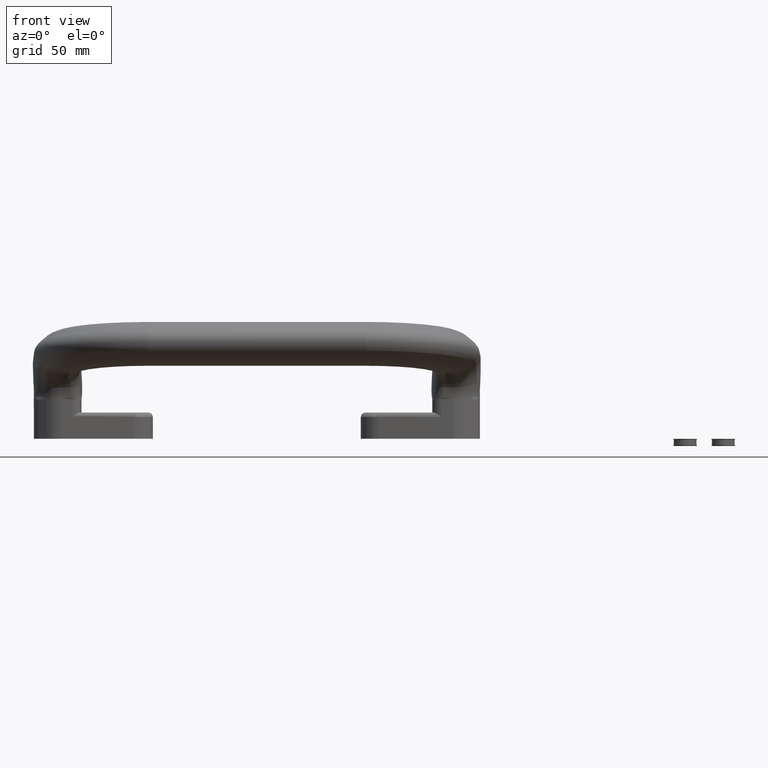
[diagram: clean part render]
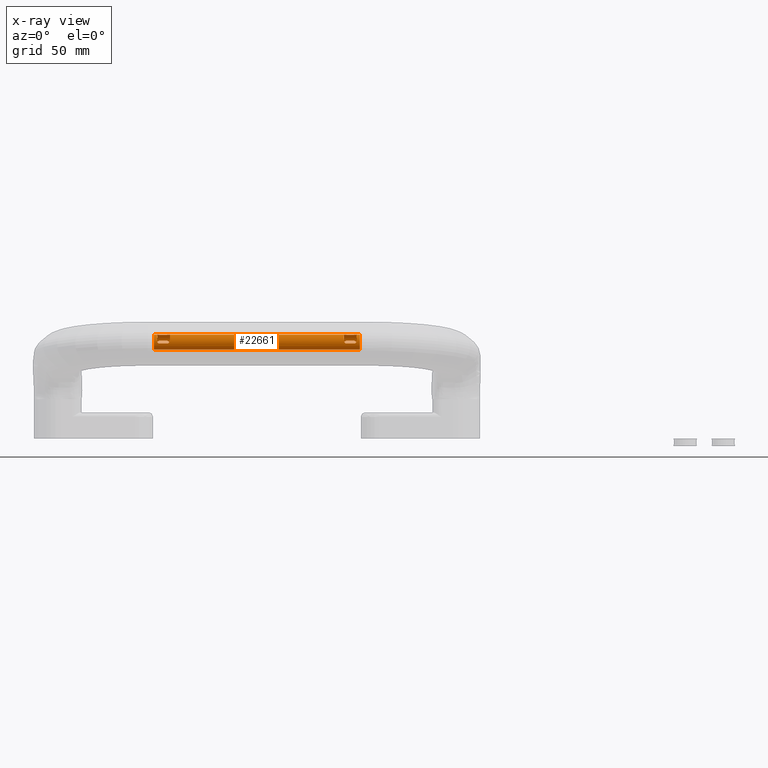
[diagram: x-ray — body ghosted, one internal face saturated and labeled with its STEP entity id]
A machine part, front view, then the same camera in x-ray: the body is ghosted and one INTERNAL B-rep face — a face not visible from any outside direction — is saturated and labeled: STEP entity #22661.
In plain terms, the highlighted cylindrical surface (bore or boss wall) has radius 5 mm, axis along (1, 0, -0).
Its self-contained STEP definition (entity closure, byte-faithful):
#717=B_SPLINE_CURVE_WITH_KNOTS('',3,(#37801,#37802,#37803,#37804),
 .UNSPECIFIED.,.F.,.F.,(4,4),(-0.0497210543653972,-1.6498193618869E-16),
 .UNSPECIFIED.);
#720=B_SPLINE_CURVE_WITH_KNOTS('',3,(#37842,#37843,#37844,#37845),
 .UNSPECIFIED.,.F.,.F.,(4,4),(0.,0.0497224993595452),.UNSPECIFIED.);
#730=B_SPLINE_CURVE_WITH_KNOTS('',3,(#38096,#38097,#38098,#38099),
 .UNSPECIFIED.,.F.,.F.,(4,4),(0.302999583960678,0.32697133136206),
 .UNSPECIFIED.);
#731=B_SPLINE_CURVE_WITH_KNOTS('',3,(#38107,#38108,#38109,#38110,#38111,
#38112,#38113,#38114,#38115,#38116,#38117,#38118,#38119,#38120,#38121,#38122),
 .UNSPECIFIED.,.F.,.F.,(4,3,3,3,3,4),(-0.391334323212283,-0.310804029867149,
-0.279524516580202,-0.233545469377799,-0.185905572199994,-0.168058200676911),
 .UNSPECIFIED.);
#732=B_SPLINE_CURVE_WITH_KNOTS('',3,(#38126,#38127,#38128,#38129,#38130),
 .UNSPECIFIED.,.F.,.F.,(4,1,4),(0.269850614988116,0.286414625157246,0.326971331360928),
 .UNSPECIFIED.);
#733=B_SPLINE_CURVE_WITH_KNOTS('',3,(#38132,#38133,#38134,#38135,#38136,
#38137),.UNSPECIFIED.,.F.,.F.,(4,2,4),(-0.126417604559592,-0.125408245271309,
-0.115692252987222),.UNSPECIFIED.);
#734=B_SPLINE_CURVE_WITH_KNOTS('',3,(#38141,#38142,#38143,#38144,#38145,
#38146),.UNSPECIFIED.,.F.,.F.,(4,2,4),(-0.0386681865399238,-0.0288996416998456,
-0.0279392744806413),.UNSPECIFIED.);
#735=B_SPLINE_CURVE_WITH_KNOTS('',3,(#38148,#38149,#38150,#38151,#38152),
 .UNSPECIFIED.,.F.,.F.,(4,1,4),(0.326971331361496,0.367528037569581,0.38409204774104),
 .UNSPECIFIED.);
#736=B_SPLINE_CURVE_WITH_KNOTS('',3,(#38156,#38157,#38158,#38159,#38160,
#38161,#38162),.UNSPECIFIED.,.F.,.F.,(4,1,1,1,4),(2.12517598679682E-15,
0.111812385603606,0.167718578405408,0.279530964009012,0.391343349612615),
 .UNSPECIFIED.);
#737=B_SPLINE_CURVE_WITH_KNOTS('',3,(#38166,#38167,#38168,#38169,#38170,
#38171,#38172),.UNSPECIFIED.,.F.,.F.,(4,1,1,1,4),(-0.391334323212283,-0.279524516580202,
-0.167714709948121,-0.111809806632081,0.),.UNSPECIFIED.);
#738=B_SPLINE_CURVE_WITH_KNOTS('',3,(#38176,#38177,#38178,#38179),
 .UNSPECIFIED.,.F.,.F.,(4,4),(0.302999583962982,0.326971331361497),
 .UNSPECIFIED.);
#739=B_SPLINE_CURVE_WITH_KNOTS('',3,(#38181,#38182,#38183,#38184),
 .UNSPECIFIED.,.F.,.F.,(4,4),(-0.0497210543653964,0.),.UNSPECIFIED.);
#740=B_SPLINE_CURVE_WITH_KNOTS('',3,(#38188,#38189,#38190,#38191),
 .UNSPECIFIED.,.F.,.F.,(4,4),(0.,0.0497224993595453),.UNSPECIFIED.);
#741=B_SPLINE_CURVE_WITH_KNOTS('',3,(#38193,#38194,#38195,#38196),
 .UNSPECIFIED.,.F.,.F.,(4,4),(0.326971331360927,0.350943078756568),
 .UNSPECIFIED.);
#742=B_SPLINE_CURVE_WITH_KNOTS('',3,(#38200,#38201,#38202,#38203,#38204),
 .UNSPECIFIED.,.F.,.F.,(4,1,4),(0.167922879884401,0.279530964009011,0.391343349612615),
 .UNSPECIFIED.);
#743=B_SPLINE_CURVE_WITH_KNOTS('',3,(#38208,#38209,#38210,#38211,#38212),
 .UNSPECIFIED.,.F.,.F.,(4,1,4),(-0.391334323212282,-0.279524516580201,-0.16805895378883),
 .UNSPECIFIED.);
#744=B_SPLINE_CURVE_WITH_KNOTS('',3,(#38216,#38217,#38218,#38219,#38220),
 .UNSPECIFIED.,.F.,.F.,(4,1,4),(0.269850614975795,0.286414625149579,0.326971331362059),
 .UNSPECIFIED.);
#745=B_SPLINE_CURVE_WITH_KNOTS('',3,(#38222,#38223,#38224,#38225,#38226,
#38227),.UNSPECIFIED.,.F.,.F.,(4,2,4),(-0.126420853416324,-0.125460813180011,
-0.115692268339933),.UNSPECIFIED.);
#746=B_SPLINE_CURVE_WITH_KNOTS('',3,(#38231,#38232,#38233,#38234,#38235,
#38236),.UNSPECIFIED.,.F.,.F.,(4,2,4),(-0.0386681865399252,-0.0288996416998461,
-0.0279396014635409),.UNSPECIFIED.);
#747=B_SPLINE_CURVE_WITH_KNOTS('',3,(#38238,#38239,#38240,#38241,#38242),
 .UNSPECIFIED.,.F.,.F.,(4,1,4),(0.326971331362059,0.367528037574539,0.384092047748323),
 .UNSPECIFIED.);
#748=B_SPLINE_CURVE_WITH_KNOTS('',3,(#38246,#38247,#38248,#38249,#38250,
#38251,#38252),.UNSPECIFIED.,.F.,.F.,(4,1,1,1,4),(0.,0.055906192801802,
0.111812385603604,0.223624771207208,0.391343349612614),.UNSPECIFIED.);
#749=B_SPLINE_CURVE_WITH_KNOTS('',3,(#38255,#38256,#38257,#38258,#38259,
#38260,#38261),.UNSPECIFIED.,.F.,.F.,(4,1,1,1,4),(-0.391334323212282,-0.279524516580201,
-0.167714709948121,-0.0559049033160402,0.),.UNSPECIFIED.);
#750=B_SPLINE_CURVE_WITH_KNOTS('',3,(#38263,#38264,#38265,#38266),
 .UNSPECIFIED.,.F.,.F.,(4,4),(0.326971331362058,0.350943078763442),
 .UNSPECIFIED.);
#751=B_SPLINE_CURVE_WITH_KNOTS('',3,(#38270,#38271,#38272,#38273,#38274),
 .UNSPECIFIED.,.F.,.F.,(4,1,4),(0.167946533765935,0.27953096400901,0.391343349612614),
 .UNSPECIFIED.);
#752=B_SPLINE_CURVE_WITH_KNOTS('',3,(#38278,#38279,#38280,#38281,#38282),
 .UNSPECIFIED.,.F.,.F.,(4,1,4),(0.167922879884403,0.279530964009011,0.391343349612615),
 .UNSPECIFIED.);
#753=B_SPLINE_CURVE_WITH_KNOTS('',3,(#38286,#38287,#38288,#38289),
 .UNSPECIFIED.,.F.,.F.,(4,4),(0.326971331360927,0.350943078756568),
 .UNSPECIFIED.);
#754=B_SPLINE_CURVE_WITH_KNOTS('',3,(#38291,#38292,#38293,#38294),
 .UNSPECIFIED.,.F.,.F.,(4,4),(0.,0.0497224993595453),.UNSPECIFIED.);
#755=B_SPLINE_CURVE_WITH_KNOTS('',3,(#38298,#38299,#38300,#38301),
 .UNSPECIFIED.,.F.,.F.,(4,4),(-0.0497210543653964,0.),.UNSPECIFIED.);
#756=B_SPLINE_CURVE_WITH_KNOTS('',3,(#38303,#38304,#38305,#38306),
 .UNSPECIFIED.,.F.,.F.,(4,4),(0.302999583962982,0.326971331361497),
 .UNSPECIFIED.);
#757=B_SPLINE_CURVE_WITH_KNOTS('',3,(#38310,#38311,#38312,#38313,#38314,
#38315,#38316),.UNSPECIFIED.,.F.,.F.,(4,1,1,1,4),(-0.391334323212283,-0.279524516580202,
-0.167714709948121,-0.111809806632081,0.),.UNSPECIFIED.);
#758=B_SPLINE_CURVE_WITH_KNOTS('',3,(#38320,#38321,#38322,#38323,#38324,
#38325,#38326),.UNSPECIFIED.,.F.,.F.,(4,1,1,1,4),(2.12517598679682E-15,
0.111812385603606,0.167718578405408,0.279530964009012,0.391343349612615),
 .UNSPECIFIED.);
#759=B_SPLINE_CURVE_WITH_KNOTS('',3,(#38330,#38331,#38332,#38333,#38334),
 .UNSPECIFIED.,.F.,.F.,(4,1,4),(0.326971331361496,0.367528037569581,0.38409204774104),
 .UNSPECIFIED.);
#760=B_SPLINE_CURVE_WITH_KNOTS('',3,(#38336,#38337,#38338,#38339,#38340,
#38341),.UNSPECIFIED.,.F.,.F.,(4,2,4),(0.0385120485763617,0.0482280408604485,
0.0492374001482688),.UNSPECIFIED.);
#761=B_SPLINE_CURVE_WITH_KNOTS('',3,(#38345,#38346,#38347,#38348,#38349,
#38350),.UNSPECIFIED.,.F.,.F.,(4,2,4),(0.10511961958143,0.106079986801097,
0.115848531641176),.UNSPECIFIED.);
#762=B_SPLINE_CURVE_WITH_KNOTS('',3,(#38352,#38353,#38354,#38355,#38356),
 .UNSPECIFIED.,.F.,.F.,(4,1,4),(0.269850614988116,0.286414625157246,0.326971331360928),
 .UNSPECIFIED.);
#763=B_SPLINE_CURVE_WITH_KNOTS('',3,(#38360,#38361,#38362,#38363,#38364,
#38365,#38366,#38367,#38368,#38369,#38370,#38371,#38372,#38373,#38374,#38375),
 .UNSPECIFIED.,.F.,.F.,(4,3,3,3,3,4),(-0.391334323212283,-0.31080402986715,
-0.279524516580202,-0.233545469377798,-0.185905572199994,-0.168058200676912),
 .UNSPECIFIED.);
#764=B_SPLINE_CURVE_WITH_KNOTS('',3,(#38382,#38383,#38384,#38385,#38386,
#38387,#38388,#38389,#38390,#38391,#38392,#38393,#38394,#38395,#38396,#38397),
 .UNSPECIFIED.,.F.,.F.,(4,3,3,3,3,4),(-0.168058200676912,-0.167714709948121,
-0.122923841562225,-0.0559049033160404,-0.0150565450204104,0.),
 .UNSPECIFIED.);
#765=B_SPLINE_CURVE_WITH_KNOTS('',3,(#38400,#38401,#38402,#38403,#38404,
#38405),.UNSPECIFIED.,.F.,.F.,(4,1,1,4),(0.,0.111812385603604,0.167718578405407,
0.167922879884403),.UNSPECIFIED.);
#766=B_SPLINE_CURVE_WITH_KNOTS('',3,(#38407,#38408,#38409,#38410,#38411,
#38412),.UNSPECIFIED.,.F.,.F.,(4,1,1,4),(0.,0.111812385603604,0.167718578405406,
0.167946533765935),.UNSPECIFIED.);
#767=B_SPLINE_CURVE_WITH_KNOTS('',3,(#38415,#38416,#38417,#38418,#38419,
#38420),.UNSPECIFIED.,.F.,.F.,(4,1,1,4),(-0.16805895378883,-0.167714709948121,
-0.0559049033160403,0.),.UNSPECIFIED.);
#768=B_SPLINE_CURVE_WITH_KNOTS('',3,(#38422,#38423,#38424,#38425,#38426,
#38427),.UNSPECIFIED.,.F.,.F.,(4,1,1,4),(0.,0.111812385603604,0.167718578405407,
0.167922879884401),.UNSPECIFIED.);
#769=B_SPLINE_CURVE_WITH_KNOTS('',3,(#38430,#38431,#38432,#38433,#38434,
#38435,#38436,#38437,#38438,#38439,#38440,#38441,#38442,#38443,#38444,#38445),
 .UNSPECIFIED.,.F.,.F.,(4,3,3,3,3,4),(-0.168058200676911,-0.167714709948121,
-0.122923841562233,-0.0559049033160404,-0.0150565450204104,0.),
 .UNSPECIFIED.);
#770=B_SPLINE_CURVE_WITH_KNOTS('',3,(#38449,#38450,#38451,#38452),
 .UNSPECIFIED.,.F.,.F.,(4,4),(-0.0497210543653973,0.),.UNSPECIFIED.);
#771=B_SPLINE_CURVE_WITH_KNOTS('',3,(#38456,#38457,#38458,#38459),
 .UNSPECIFIED.,.F.,.F.,(4,4),(0.,0.0497224993595447),.UNSPECIFIED.);
#772=B_SPLINE_CURVE_WITH_KNOTS('',3,(#38461,#38462,#38463,#38464),
 .UNSPECIFIED.,.F.,.F.,(4,4),(0.326971331362059,0.350943078763441),
 .UNSPECIFIED.);
#773=B_SPLINE_CURVE_WITH_KNOTS('',3,(#38468,#38469,#38470,#38471,#38472,
#38473,#38474),.UNSPECIFIED.,.F.,.F.,(4,1,1,1,4),(0.,0.111812385603604,
0.167718578405407,0.279530964009011,0.391343349612615),.UNSPECIFIED.);
#774=B_SPLINE_CURVE_WITH_KNOTS('',3,(#38478,#38479,#38480,#38481,#38482,
#38483,#38484),.UNSPECIFIED.,.F.,.F.,(4,1,1,1,4),(-0.391334323212281,-0.279524516580201,
-0.167714709948121,-0.0559049033160402,0.),.UNSPECIFIED.);
#775=B_SPLINE_CURVE_WITH_KNOTS('',3,(#38488,#38489,#38490,#38491,#38492),
 .UNSPECIFIED.,.F.,.F.,(4,1,4),(0.269850614975795,0.286414625149578,0.32697133136206),
 .UNSPECIFIED.);
#776=B_SPLINE_CURVE_WITH_KNOTS('',3,(#38494,#38495,#38496,#38497,#38498,
#38499),.UNSPECIFIED.,.F.,.F.,(4,2,4),(-0.126417293029127,-0.12540826062402,
-0.115692268339933),.UNSPECIFIED.);
#777=B_SPLINE_CURVE_WITH_KNOTS('',3,(#38503,#38504,#38505,#38506,#38507,
#38508),.UNSPECIFIED.,.F.,.F.,(4,2,4),(-0.0386682965248886,-0.0289523042408019,
-0.0279432718357032),.UNSPECIFIED.);
#778=B_SPLINE_CURVE_WITH_KNOTS('',3,(#38510,#38511,#38512,#38513,#38514),
 .UNSPECIFIED.,.F.,.F.,(4,1,4),(0.326971331362058,0.367528037574538,0.384092047748322),
 .UNSPECIFIED.);
#779=B_SPLINE_CURVE_WITH_KNOTS('',3,(#38518,#38519,#38520,#38521,#38522,
#38523,#38524),.UNSPECIFIED.,.F.,.F.,(4,1,1,1,4),(9.01799398419274E-17,
0.0559061928018021,0.111812385603604,0.223624771207208,0.391343349612614),
 .UNSPECIFIED.);
#780=B_SPLINE_CURVE_WITH_KNOTS('',3,(#38528,#38529,#38530,#38531,#38532,
#38533,#38534),.UNSPECIFIED.,.F.,.F.,(4,1,1,1,4),(-0.391334323212283,-0.279524516580202,
-0.167714709948121,-0.0559049033160404,0.),.UNSPECIFIED.);
#781=B_SPLINE_CURVE_WITH_KNOTS('',3,(#38537,#38538,#38539,#38540),
 .UNSPECIFIED.,.F.,.F.,(4,4),(0.302999583960677,0.326971331362059),
 .UNSPECIFIED.);
#782=B_SPLINE_CURVE_WITH_KNOTS('',3,(#38543,#38544,#38545,#38546),
 .UNSPECIFIED.,.F.,.F.,(4,4),(-0.0497210543653962,0.),.UNSPECIFIED.);
#783=B_SPLINE_CURVE_WITH_KNOTS('',3,(#38548,#38549,#38550,#38551),
 .UNSPECIFIED.,.F.,.F.,(4,4),(0.302999583969923,0.326971331359792),
 .UNSPECIFIED.);
#784=B_SPLINE_CURVE_WITH_KNOTS('',3,(#38555,#38556,#38557,#38558,#38559,
#38560,#38561),.UNSPECIFIED.,.F.,.F.,(4,1,1,1,4),(-0.391334323212283,-0.279524516580202,
-0.167714709948121,-0.111809806632081,0.),.UNSPECIFIED.);
#785=B_SPLINE_CURVE_WITH_KNOTS('',3,(#38565,#38566,#38567,#38568,#38569,
#38570,#38571),.UNSPECIFIED.,.F.,.F.,(4,1,1,1,4),(0.,0.0559061928018019,
0.111812385603604,0.223624771207208,0.391343349612613),.UNSPECIFIED.);
#786=B_SPLINE_CURVE_WITH_KNOTS('',3,(#38575,#38576,#38577,#38578,#38579),
 .UNSPECIFIED.,.F.,.F.,(4,1,4),(0.653942662719585,0.694499368914427,0.711063379078887),
 .UNSPECIFIED.);
#787=B_SPLINE_CURVE_WITH_KNOTS('',3,(#38581,#38582,#38583,#38584,#38585,
#38586),.UNSPECIFIED.,.F.,.F.,(4,2,4),(0.0385120485763595,0.0482280408604483,
0.0492374001496451),.UNSPECIFIED.);
#788=B_SPLINE_CURVE_WITH_KNOTS('',3,(#38590,#38591,#38592,#38593,#38594,
#38595),.UNSPECIFIED.,.F.,.F.,(4,2,4),(0.105123164715633,0.106132524004374,
0.115848516288461),.UNSPECIFIED.);
#789=B_SPLINE_CURVE_WITH_KNOTS('',3,(#38597,#38598,#38599,#38600,#38601),
 .UNSPECIFIED.,.F.,.F.,(4,1,4),(0.269850614994298,0.286414625161096,0.326971331360363),
 .UNSPECIFIED.);
#790=B_SPLINE_CURVE_WITH_KNOTS('',3,(#38605,#38606,#38607,#38608,#38609,
#38610,#38611,#38612,#38613,#38614,#38615,#38616,#38617,#38618,#38619,#38620,
#38621,#38622,#38623,#38624,#38625,#38626,#38627,#38628,#38629,#38630,#38631,
#38632),.UNSPECIFIED.,.F.,.F.,(4,3,3,3,3,3,3,3,3,4),(-0.391334323212281,
-0.310804029867193,-0.279524516580201,-0.233543678250337,-0.185893890979761,
-0.16771470994812,-0.12292384156223,-0.0559049033160401,-0.0150565450204116,
0.),.UNSPECIFIED.);
#791=B_SPLINE_CURVE_WITH_KNOTS('',3,(#38636,#38637,#38638,#38639,#38640,
#38641,#38642,#38643,#38644,#38645,#38646,#38647,#38648,#38649,#38650,#38651,
#38652,#38653,#38654,#38655,#38656,#38657,#38658,#38659,#38660,#38661,#38662,
#38663,#38664,#38665,#38666),.UNSPECIFIED.,.F.,.F.,(4,3,3,3,3,3,3,3,3,3,
4),(0.,0.0408524700493451,0.055906192801802,0.111812385603604,0.156616734346662,
0.167718578405406,0.215588507989354,0.261643895759569,0.27953096400901,
0.360338798720679,0.391343349612614),.UNSPECIFIED.);
#792=B_SPLINE_CURVE_WITH_KNOTS('',3,(#38670,#38671,#38672,#38673),
 .UNSPECIFIED.,.F.,.F.,(4,4),(0.326971331360361,0.350943078753118),
 .UNSPECIFIED.);
#793=B_SPLINE_CURVE_WITH_KNOTS('',3,(#38675,#38676,#38677,#38678),
 .UNSPECIFIED.,.F.,.F.,(4,4),(0.,0.0497224993595452),.UNSPECIFIED.);
#794=B_SPLINE_CURVE_WITH_KNOTS('',3,(#38682,#38683,#38684,#38685),
 .UNSPECIFIED.,.F.,.F.,(4,4),(-0.0497210543653962,0.),.UNSPECIFIED.);
#795=B_SPLINE_CURVE_WITH_KNOTS('',3,(#38689,#38690,#38691,#38692),
 .UNSPECIFIED.,.F.,.F.,(4,4),(0.,0.0497224993595452),.UNSPECIFIED.);
#796=B_SPLINE_CURVE_WITH_KNOTS('',3,(#38694,#38695,#38696,#38697),
 .UNSPECIFIED.,.F.,.F.,(4,4),(0.326971331360361,0.350943078753118),
 .UNSPECIFIED.);
#797=B_SPLINE_CURVE_WITH_KNOTS('',3,(#38701,#38702,#38703,#38704,#38705,
#38706,#38707,#38708,#38709,#38710,#38711,#38712,#38713,#38714,#38715,#38716,
#38717,#38718,#38719,#38720,#38721,#38722,#38723,#38724,#38725,#38726,#38727,
#38728,#38729,#38730,#38731),.UNSPECIFIED.,.F.,.F.,(4,3,3,3,3,3,3,3,3,3,
4),(0.,0.040852470049345,0.055906192801802,0.111812385603604,0.156616734346663,
0.167718578405406,0.215588507989357,0.261643895759572,0.27953096400901,
0.36033879872068,0.391343349612614),.UNSPECIFIED.);
#798=B_SPLINE_CURVE_WITH_KNOTS('',3,(#38735,#38736,#38737,#38738,#38739,
#38740,#38741,#38742,#38743,#38744,#38745,#38746,#38747,#38748,#38749,#38750,
#38751,#38752,#38753,#38754,#38755,#38756,#38757,#38758,#38759,#38760,#38761,
#38762),.UNSPECIFIED.,.F.,.F.,(4,3,3,3,3,3,3,3,3,4),(-0.391334323212281,
-0.310804029867194,-0.279524516580201,-0.233543678250336,-0.185893890979761,
-0.16771470994812,-0.12292384156223,-0.0559049033160401,-0.0150565450204117,
0.),.UNSPECIFIED.);
#799=B_SPLINE_CURVE_WITH_KNOTS('',3,(#38766,#38767,#38768,#38769,#38770),
 .UNSPECIFIED.,.F.,.F.,(4,1,4),(0.269850614994298,0.286414625161096,0.326971331360363),
 .UNSPECIFIED.);
#800=B_SPLINE_CURVE_WITH_KNOTS('',3,(#38772,#38773,#38774,#38775,#38776,
#38777),.UNSPECIFIED.,.F.,.F.,(4,2,4),(-0.126417619912762,-0.125408260624021,
-0.115692268339934),.UNSPECIFIED.);
#801=B_SPLINE_CURVE_WITH_KNOTS('',3,(#38781,#38782,#38783,#38784,#38785,
#38786),.UNSPECIFIED.,.F.,.F.,(4,2,4),(-0.0386682965248905,-0.0289523042408019,
-0.0279429449516058),.UNSPECIFIED.);
#802=B_SPLINE_CURVE_WITH_KNOTS('',3,(#38788,#38789,#38790,#38791,#38792),
 .UNSPECIFIED.,.F.,.F.,(4,1,4),(0.653942662719585,0.694499368914427,0.711063379078887),
 .UNSPECIFIED.);
#803=B_SPLINE_CURVE_WITH_KNOTS('',3,(#38796,#38797,#38798,#38799,#38800,
#38801,#38802),.UNSPECIFIED.,.F.,.F.,(4,1,1,1,4),(0.,0.0559061928018019,
0.111812385603604,0.223624771207208,0.391343349612613),.UNSPECIFIED.);
#804=B_SPLINE_CURVE_WITH_KNOTS('',3,(#38806,#38807,#38808,#38809,#38810,
#38811,#38812),.UNSPECIFIED.,.F.,.F.,(4,1,1,1,4),(-0.391334323212283,-0.279524516580202,
-0.167714709948121,-0.111809806632081,0.),.UNSPECIFIED.);
#805=B_SPLINE_CURVE_WITH_KNOTS('',3,(#38815,#38816,#38817,#38818),
 .UNSPECIFIED.,.F.,.F.,(4,4),(0.302999583969923,0.326971331359792),
 .UNSPECIFIED.);
#1613=FACE_BOUND('',#3852,.T.);
#1614=FACE_BOUND('',#3853,.T.);
#1615=FACE_BOUND('',#3854,.T.);
#2441=FACE_OUTER_BOUND('',#3851,.T.);
#3851=EDGE_LOOP('',(#16055,#16056,#16057,#16058,#16059,#16060,#16061,#16062,
#16063,#16064,#16065,#16066,#16067,#16068,#16069,#16070,#16071,#16072,#16073,
#16074,#16075,#16076,#16077,#16078,#16079,#16080,#16081,#16082,#16083,#16084,
#16085,#16086,#16087,#16088,#16089,#16090,#16091,#16092,#16093,#16094,#16095,
#16096,#16097,#16098,#16099,#16100,#16101,#16102,#16103,#16104,#16105,#16106,
#16107,#16108,#16109,#16110,#16111,#16112,#16113,#16114,#16115,#16116,#16117,
#16118,#16119,#16120,#16121,#16122,#16123,#16124,#16125,#16126,#16127,#16128,
#16129,#16130,#16131,#16132));
#3852=EDGE_LOOP('',(#16133,#16134,#16135,#16136,#16137,#16138,#16139,#16140,
#16141,#16142,#16143,#16144,#16145,#16146,#16147,#16148,#16149,#16150,#16151,
#16152));
#3853=EDGE_LOOP('',(#16153,#16154,#16155,#16156,#16157,#16158,#16159,#16160,
#16161,#16162,#16163,#16164,#16165,#16166,#16167,#16168,#16169,#16170,#16171,
#16172));
#3854=EDGE_LOOP('',(#16173,#16174,#16175,#16176,#16177,#16178,#16179,#16180,
#16181,#16182,#16183,#16184,#16185,#16186,#16187,#16188,#16189,#16190,#16191,
#16192));
#5537=LINE('',#38105,#6810);
#5538=LINE('',#38164,#6811);
#5539=LINE('',#38206,#6812);
#5540=LINE('',#38254,#6813);
#5541=LINE('',#38276,#6814);
#5542=LINE('',#38318,#6815);
#5543=LINE('',#38377,#6816);
#5544=LINE('',#38399,#6817);
#5545=LINE('',#38414,#6818);
#5546=LINE('',#38429,#6819);
#5547=LINE('',#38476,#6820);
#5548=LINE('',#38526,#6821);
#5549=LINE('',#38563,#6822);
#5550=LINE('',#38634,#6823);
#5551=LINE('',#38733,#6824);
#5552=LINE('',#38804,#6825);
#6810=VECTOR('',#27551,0.196850393700787);
#6811=VECTOR('',#27558,0.393700787401575);
#6812=VECTOR('',#27565,0.196850393700787);
#6813=VECTOR('',#27572,0.393700787401575);
#6814=VECTOR('',#27575,0.196850393700787);
#6815=VECTOR('',#27582,0.393700787401575);
#6816=VECTOR('',#27589,0.196850393700787);
#6817=VECTOR('',#27594,0.393700787401575);
#6818=VECTOR('',#27595,0.393700787401575);
#6819=VECTOR('',#27596,0.393700787401575);
#6820=VECTOR('',#27603,0.393700787401575);
#6821=VECTOR('',#27610,0.393700787401575);
#6822=VECTOR('',#27615,0.393700787401575);
#6823=VECTOR('',#27622,0.393700787401575);
#6824=VECTOR('',#27631,0.393700787401575);
#6825=VECTOR('',#27638,0.393700787401575);
#7470=CIRCLE('',#24038,0.196850393700787);
#7477=CIRCLE('',#24052,0.196850393700787);
#7479=CIRCLE('',#24055,0.196850393700787);
#7480=CIRCLE('',#24056,0.196850393700787);
#7481=CIRCLE('',#24057,0.196850393700787);
#7482=CIRCLE('',#24058,0.196850393700787);
#7483=CIRCLE('',#24059,0.196850393700787);
#7484=CIRCLE('',#24060,0.196850393700787);
#7485=CIRCLE('',#24061,0.196850393700787);
#7486=CIRCLE('',#24062,0.196850393700787);
#7487=CIRCLE('',#24063,0.196850393700787);
#7488=CIRCLE('',#24064,0.196850393700787);
#7489=CIRCLE('',#24065,0.196850393700787);
#7490=CIRCLE('',#24066,0.196850393700787);
#7491=CIRCLE('',#24067,0.196850393700787);
#7492=CIRCLE('',#24068,0.196850393700787);
#7493=CIRCLE('',#24069,0.196850393700787);
#7494=CIRCLE('',#24070,0.196850393700787);
#7495=CIRCLE('',#24071,0.196850393700787);
#7496=CIRCLE('',#24072,0.196850393700787);
#7497=CIRCLE('',#24073,0.196850393700787);
#7498=CIRCLE('',#24074,0.196850393700787);
#7499=CIRCLE('',#24075,0.196850393700787);
#7500=CIRCLE('',#24076,0.196850393700787);
#7501=CIRCLE('',#24077,0.196850393700787);
#7502=CIRCLE('',#24078,0.196850393700787);
#7503=CIRCLE('',#24079,0.196850393700787);
#7504=CIRCLE('',#24080,0.196850393700787);
#7505=CIRCLE('',#24081,0.196850393700787);
#7506=CIRCLE('',#24082,0.196850393700787);
#7507=CIRCLE('',#24083,0.196850393700787);
#7508=CIRCLE('',#24084,0.196850393700787);
#7509=CIRCLE('',#24085,0.196850393700787);
#7510=CIRCLE('',#24086,0.196850393700787);
#7511=CIRCLE('',#24087,0.196850393700787);
#7512=CIRCLE('',#24088,0.196850393700787);
#7513=CIRCLE('',#24089,0.196850393700787);
#7514=CIRCLE('',#24090,0.196850393700787);
#7515=CIRCLE('',#24091,0.196850393700787);
#7516=CIRCLE('',#24092,0.196850393700787);
#9215=VERTEX_POINT('',#37754);
#9217=VERTEX_POINT('',#37799);
#9219=VERTEX_POINT('',#37811);
#9221=VERTEX_POINT('',#37840);
#9237=VERTEX_POINT('',#38075);
#9238=VERTEX_POINT('',#38077);
#9239=VERTEX_POINT('',#38101);
#9240=VERTEX_POINT('',#38102);
#9241=VERTEX_POINT('',#38104);
#9242=VERTEX_POINT('',#38106);
#9243=VERTEX_POINT('',#38123);
#9244=VERTEX_POINT('',#38125);
#9245=VERTEX_POINT('',#38131);
#9246=VERTEX_POINT('',#38138);
#9247=VERTEX_POINT('',#38140);
#9248=VERTEX_POINT('',#38147);
#9249=VERTEX_POINT('',#38153);
#9250=VERTEX_POINT('',#38155);
#9251=VERTEX_POINT('',#38163);
#9252=VERTEX_POINT('',#38165);
#9253=VERTEX_POINT('',#38173);
#9254=VERTEX_POINT('',#38175);
#9255=VERTEX_POINT('',#38180);
#9256=VERTEX_POINT('',#38185);
#9257=VERTEX_POINT('',#38187);
#9258=VERTEX_POINT('',#38192);
#9259=VERTEX_POINT('',#38197);
#9260=VERTEX_POINT('',#38199);
#9261=VERTEX_POINT('',#38205);
#9262=VERTEX_POINT('',#38207);
#9263=VERTEX_POINT('',#38213);
#9264=VERTEX_POINT('',#38215);
#9265=VERTEX_POINT('',#38221);
#9266=VERTEX_POINT('',#38228);
#9267=VERTEX_POINT('',#38230);
#9268=VERTEX_POINT('',#38237);
#9269=VERTEX_POINT('',#38243);
#9270=VERTEX_POINT('',#38245);
#9271=VERTEX_POINT('',#38253);
#9272=VERTEX_POINT('',#38262);
#9273=VERTEX_POINT('',#38267);
#9274=VERTEX_POINT('',#38269);
#9275=VERTEX_POINT('',#38275);
#9276=VERTEX_POINT('',#38277);
#9277=VERTEX_POINT('',#38283);
#9278=VERTEX_POINT('',#38285);
#9279=VERTEX_POINT('',#38290);
#9280=VERTEX_POINT('',#38295);
#9281=VERTEX_POINT('',#38297);
#9282=VERTEX_POINT('',#38302);
#9283=VERTEX_POINT('',#38307);
#9284=VERTEX_POINT('',#38309);
#9285=VERTEX_POINT('',#38317);
#9286=VERTEX_POINT('',#38319);
#9287=VERTEX_POINT('',#38327);
#9288=VERTEX_POINT('',#38329);
#9289=VERTEX_POINT('',#38335);
#9290=VERTEX_POINT('',#38342);
#9291=VERTEX_POINT('',#38344);
#9292=VERTEX_POINT('',#38351);
#9293=VERTEX_POINT('',#38357);
#9294=VERTEX_POINT('',#38359);
#9295=VERTEX_POINT('',#38376);
#9296=VERTEX_POINT('',#38378);
#9297=VERTEX_POINT('',#38381);
#9298=VERTEX_POINT('',#38398);
#9299=VERTEX_POINT('',#38406);
#9300=VERTEX_POINT('',#38413);
#9301=VERTEX_POINT('',#38421);
#9302=VERTEX_POINT('',#38428);
#9303=VERTEX_POINT('',#38447);
#9304=VERTEX_POINT('',#38448);
#9305=VERTEX_POINT('',#38453);
#9306=VERTEX_POINT('',#38455);
#9307=VERTEX_POINT('',#38460);
#9308=VERTEX_POINT('',#38465);
#9309=VERTEX_POINT('',#38467);
#9310=VERTEX_POINT('',#38475);
#9311=VERTEX_POINT('',#38477);
#9312=VERTEX_POINT('',#38485);
#9313=VERTEX_POINT('',#38487);
#9314=VERTEX_POINT('',#38493);
#9315=VERTEX_POINT('',#38500);
#9316=VERTEX_POINT('',#38502);
#9317=VERTEX_POINT('',#38509);
#9318=VERTEX_POINT('',#38515);
#9319=VERTEX_POINT('',#38517);
#9320=VERTEX_POINT('',#38525);
#9321=VERTEX_POINT('',#38527);
#9322=VERTEX_POINT('',#38535);
#9323=VERTEX_POINT('',#38541);
#9324=VERTEX_POINT('',#38542);
#9325=VERTEX_POINT('',#38547);
#9326=VERTEX_POINT('',#38552);
#9327=VERTEX_POINT('',#38554);
#9328=VERTEX_POINT('',#38562);
#9329=VERTEX_POINT('',#38564);
#9330=VERTEX_POINT('',#38572);
#9331=VERTEX_POINT('',#38574);
#9332=VERTEX_POINT('',#38580);
#9333=VERTEX_POINT('',#38587);
#9334=VERTEX_POINT('',#38589);
#9335=VERTEX_POINT('',#38596);
#9336=VERTEX_POINT('',#38602);
#9337=VERTEX_POINT('',#38604);
#9338=VERTEX_POINT('',#38633);
#9339=VERTEX_POINT('',#38635);
#9340=VERTEX_POINT('',#38667);
#9341=VERTEX_POINT('',#38669);
#9342=VERTEX_POINT('',#38674);
#9343=VERTEX_POINT('',#38680);
#9344=VERTEX_POINT('',#38681);
#9345=VERTEX_POINT('',#38686);
#9346=VERTEX_POINT('',#38688);
#9347=VERTEX_POINT('',#38693);
#9348=VERTEX_POINT('',#38698);
#9349=VERTEX_POINT('',#38700);
#9350=VERTEX_POINT('',#38732);
#9351=VERTEX_POINT('',#38734);
#9352=VERTEX_POINT('',#38763);
#9353=VERTEX_POINT('',#38765);
#9354=VERTEX_POINT('',#38771);
#9355=VERTEX_POINT('',#38778);
#9356=VERTEX_POINT('',#38780);
#9357=VERTEX_POINT('',#38787);
#9358=VERTEX_POINT('',#38793);
#9359=VERTEX_POINT('',#38795);
#9360=VERTEX_POINT('',#38803);
#9361=VERTEX_POINT('',#38805);
#9362=VERTEX_POINT('',#38813);
#11614=EDGE_CURVE('',#9217,#9215,#717,.T.);
#11617=EDGE_CURVE('',#9219,#9217,#7470,.T.);
#11621=EDGE_CURVE('',#9221,#9219,#720,.T.);
#11643=EDGE_CURVE('',#9237,#9238,#7477,.T.);
#11645=EDGE_CURVE('',#9215,#9237,#730,.T.);
#11646=EDGE_CURVE('',#9239,#9240,#7479,.T.);
#11647=EDGE_CURVE('',#9239,#9241,#5537,.T.);
#11648=EDGE_CURVE('',#9242,#9241,#731,.T.);
#11649=EDGE_CURVE('',#9243,#9242,#7480,.T.);
#11650=EDGE_CURVE('',#9244,#9243,#732,.T.);
#11651=EDGE_CURVE('',#9244,#9245,#733,.T.);
#11652=EDGE_CURVE('',#9245,#9246,#7481,.T.);
#11653=EDGE_CURVE('',#9247,#9246,#734,.F.);
#11654=EDGE_CURVE('',#9248,#9247,#735,.T.);
#11655=EDGE_CURVE('',#9249,#9248,#7482,.T.);
#11656=EDGE_CURVE('',#9250,#9249,#736,.T.);
#11657=EDGE_CURVE('',#9251,#9250,#5538,.T.);
#11658=EDGE_CURVE('',#9252,#9251,#737,.T.);
#11659=EDGE_CURVE('',#9253,#9252,#7483,.T.);
#11660=EDGE_CURVE('',#9254,#9253,#738,.T.);
#11661=EDGE_CURVE('',#9255,#9254,#739,.T.);
#11662=EDGE_CURVE('',#9256,#9255,#7484,.T.);
#11663=EDGE_CURVE('',#9257,#9256,#740,.T.);
#11664=EDGE_CURVE('',#9258,#9257,#741,.T.);
#11665=EDGE_CURVE('',#9259,#9258,#7485,.T.);
#11666=EDGE_CURVE('',#9260,#9259,#742,.T.);
#11667=EDGE_CURVE('',#9260,#9261,#5539,.T.);
#11668=EDGE_CURVE('',#9262,#9261,#743,.T.);
#11669=EDGE_CURVE('',#9263,#9262,#7486,.T.);
#11670=EDGE_CURVE('',#9264,#9263,#744,.T.);
#11671=EDGE_CURVE('',#9264,#9265,#745,.T.);
#11672=EDGE_CURVE('',#9265,#9266,#7487,.T.);
#11673=EDGE_CURVE('',#9267,#9266,#746,.F.);
#11674=EDGE_CURVE('',#9268,#9267,#747,.T.);
#11675=EDGE_CURVE('',#9269,#9268,#7488,.T.);
#11676=EDGE_CURVE('',#9270,#9269,#748,.T.);
#11677=EDGE_CURVE('',#9271,#9270,#5540,.T.);
#11678=EDGE_CURVE('',#9238,#9271,#749,.T.);
#11679=EDGE_CURVE('',#9272,#9221,#750,.T.);
#11680=EDGE_CURVE('',#9273,#9272,#7489,.T.);
#11681=EDGE_CURVE('',#9274,#9273,#751,.T.);
#11682=EDGE_CURVE('',#9274,#9275,#5541,.T.);
#11683=EDGE_CURVE('',#9275,#9276,#752,.T.);
#11684=EDGE_CURVE('',#9276,#9277,#7490,.T.);
#11685=EDGE_CURVE('',#9277,#9278,#753,.T.);
#11686=EDGE_CURVE('',#9278,#9279,#754,.T.);
#11687=EDGE_CURVE('',#9279,#9280,#7491,.T.);
#11688=EDGE_CURVE('',#9280,#9281,#755,.T.);
#11689=EDGE_CURVE('',#9281,#9282,#756,.T.);
#11690=EDGE_CURVE('',#9282,#9283,#7492,.T.);
#11691=EDGE_CURVE('',#9283,#9284,#757,.T.);
#11692=EDGE_CURVE('',#9284,#9285,#5542,.T.);
#11693=EDGE_CURVE('',#9285,#9286,#758,.T.);
#11694=EDGE_CURVE('',#9286,#9287,#7493,.T.);
#11695=EDGE_CURVE('',#9287,#9288,#759,.T.);
#11696=EDGE_CURVE('',#9288,#9289,#760,.F.);
#11697=EDGE_CURVE('',#9290,#9289,#7494,.T.);
#11698=EDGE_CURVE('',#9291,#9290,#761,.T.);
#11699=EDGE_CURVE('',#9291,#9292,#762,.T.);
#11700=EDGE_CURVE('',#9292,#9293,#7495,.T.);
#11701=EDGE_CURVE('',#9293,#9294,#763,.T.);
#11702=EDGE_CURVE('',#9294,#9295,#5543,.T.);
#11703=EDGE_CURVE('',#9295,#9296,#7496,.T.);
#11704=EDGE_CURVE('',#9296,#9295,#7497,.T.);
#11705=EDGE_CURVE('',#9294,#9297,#764,.T.);
#11706=EDGE_CURVE('',#9297,#9298,#5544,.T.);
#11707=EDGE_CURVE('',#9298,#9275,#765,.T.);
#11708=EDGE_CURVE('',#9299,#9274,#766,.T.);
#11709=EDGE_CURVE('',#9300,#9299,#5545,.T.);
#11710=EDGE_CURVE('',#9261,#9300,#767,.T.);
#11711=EDGE_CURVE('',#9301,#9260,#768,.T.);
#11712=EDGE_CURVE('',#9302,#9301,#5546,.T.);
#11713=EDGE_CURVE('',#9241,#9302,#769,.T.);
#11714=EDGE_CURVE('',#9240,#9239,#7498,.T.);
#11715=EDGE_CURVE('',#9303,#9304,#770,.T.);
#11716=EDGE_CURVE('',#9305,#9303,#7499,.T.);
#11717=EDGE_CURVE('',#9306,#9305,#771,.T.);
#11718=EDGE_CURVE('',#9307,#9306,#772,.T.);
#11719=EDGE_CURVE('',#9308,#9307,#7500,.T.);
#11720=EDGE_CURVE('',#9309,#9308,#773,.T.);
#11721=EDGE_CURVE('',#9310,#9309,#5547,.T.);
#11722=EDGE_CURVE('',#9311,#9310,#774,.T.);
#11723=EDGE_CURVE('',#9312,#9311,#7501,.T.);
#11724=EDGE_CURVE('',#9313,#9312,#775,.T.);
#11725=EDGE_CURVE('',#9313,#9314,#776,.T.);
#11726=EDGE_CURVE('',#9314,#9315,#7502,.T.);
#11727=EDGE_CURVE('',#9316,#9315,#777,.F.);
#11728=EDGE_CURVE('',#9317,#9316,#778,.T.);
#11729=EDGE_CURVE('',#9318,#9317,#7503,.T.);
#11730=EDGE_CURVE('',#9319,#9318,#779,.T.);
#11731=EDGE_CURVE('',#9320,#9319,#5548,.T.);
#11732=EDGE_CURVE('',#9321,#9320,#780,.T.);
#11733=EDGE_CURVE('',#9322,#9321,#7504,.T.);
#11734=EDGE_CURVE('',#9304,#9322,#781,.T.);
#11735=EDGE_CURVE('',#9323,#9324,#782,.T.);
#11736=EDGE_CURVE('',#9324,#9325,#783,.T.);
#11737=EDGE_CURVE('',#9325,#9326,#7505,.T.);
#11738=EDGE_CURVE('',#9326,#9327,#784,.T.);
#11739=EDGE_CURVE('',#9327,#9328,#5549,.T.);
#11740=EDGE_CURVE('',#9328,#9329,#785,.T.);
#11741=EDGE_CURVE('',#9329,#9330,#7506,.T.);
#11742=EDGE_CURVE('',#9330,#9331,#786,.T.);
#11743=EDGE_CURVE('',#9331,#9332,#787,.F.);
#11744=EDGE_CURVE('',#9333,#9332,#7507,.T.);
#11745=EDGE_CURVE('',#9334,#9333,#788,.T.);
#11746=EDGE_CURVE('',#9334,#9335,#789,.T.);
#11747=EDGE_CURVE('',#9335,#9336,#7508,.T.);
#11748=EDGE_CURVE('',#9336,#9337,#790,.T.);
#11749=EDGE_CURVE('',#9337,#9338,#5550,.T.);
#11750=EDGE_CURVE('',#9338,#9339,#791,.T.);
#11751=EDGE_CURVE('',#9339,#9340,#7509,.T.);
#11752=EDGE_CURVE('',#9340,#9341,#792,.T.);
#11753=EDGE_CURVE('',#9341,#9342,#793,.T.);
#11754=EDGE_CURVE('',#9342,#9323,#7510,.T.);
#11755=EDGE_CURVE('',#9343,#9344,#794,.T.);
#11756=EDGE_CURVE('',#9345,#9343,#7511,.T.);
#11757=EDGE_CURVE('',#9346,#9345,#795,.T.);
#11758=EDGE_CURVE('',#9347,#9346,#796,.T.);
#11759=EDGE_CURVE('',#9348,#9347,#7512,.T.);
#11760=EDGE_CURVE('',#9349,#9348,#797,.T.);
#11761=EDGE_CURVE('',#9350,#9349,#5551,.T.);
#11762=EDGE_CURVE('',#9351,#9350,#798,.T.);
#11763=EDGE_CURVE('',#9352,#9351,#7513,.T.);
#11764=EDGE_CURVE('',#9353,#9352,#799,.T.);
#11765=EDGE_CURVE('',#9353,#9354,#800,.T.);
#11766=EDGE_CURVE('',#9354,#9355,#7514,.T.);
#11767=EDGE_CURVE('',#9356,#9355,#801,.F.);
#11768=EDGE_CURVE('',#9357,#9356,#802,.T.);
#11769=EDGE_CURVE('',#9358,#9357,#7515,.T.);
#11770=EDGE_CURVE('',#9359,#9358,#803,.T.);
#11771=EDGE_CURVE('',#9360,#9359,#5552,.T.);
#11772=EDGE_CURVE('',#9361,#9360,#804,.T.);
#11773=EDGE_CURVE('',#9362,#9361,#7516,.T.);
#11774=EDGE_CURVE('',#9344,#9362,#805,.T.);
#16055=ORIENTED_EDGE('',*,*,#11646,.F.);
#16056=ORIENTED_EDGE('',*,*,#11647,.T.);
#16057=ORIENTED_EDGE('',*,*,#11648,.F.);
#16058=ORIENTED_EDGE('',*,*,#11649,.F.);
#16059=ORIENTED_EDGE('',*,*,#11650,.F.);
#16060=ORIENTED_EDGE('',*,*,#11651,.T.);
#16061=ORIENTED_EDGE('',*,*,#11652,.T.);
#16062=ORIENTED_EDGE('',*,*,#11653,.F.);
#16063=ORIENTED_EDGE('',*,*,#11654,.F.);
#16064=ORIENTED_EDGE('',*,*,#11655,.F.);
#16065=ORIENTED_EDGE('',*,*,#11656,.F.);
#16066=ORIENTED_EDGE('',*,*,#11657,.F.);
#16067=ORIENTED_EDGE('',*,*,#11658,.F.);
#16068=ORIENTED_EDGE('',*,*,#11659,.F.);
#16069=ORIENTED_EDGE('',*,*,#11660,.F.);
#16070=ORIENTED_EDGE('',*,*,#11661,.F.);
#16071=ORIENTED_EDGE('',*,*,#11662,.F.);
#16072=ORIENTED_EDGE('',*,*,#11663,.F.);
#16073=ORIENTED_EDGE('',*,*,#11664,.F.);
#16074=ORIENTED_EDGE('',*,*,#11665,.F.);
#16075=ORIENTED_EDGE('',*,*,#11666,.F.);
#16076=ORIENTED_EDGE('',*,*,#11667,.T.);
#16077=ORIENTED_EDGE('',*,*,#11668,.F.);
#16078=ORIENTED_EDGE('',*,*,#11669,.F.);
#16079=ORIENTED_EDGE('',*,*,#11670,.F.);
#16080=ORIENTED_EDGE('',*,*,#11671,.T.);
#16081=ORIENTED_EDGE('',*,*,#11672,.T.);
#16082=ORIENTED_EDGE('',*,*,#11673,.F.);
#16083=ORIENTED_EDGE('',*,*,#11674,.F.);
#16084=ORIENTED_EDGE('',*,*,#11675,.F.);
#16085=ORIENTED_EDGE('',*,*,#11676,.F.);
#16086=ORIENTED_EDGE('',*,*,#11677,.F.);
#16087=ORIENTED_EDGE('',*,*,#11678,.F.);
#16088=ORIENTED_EDGE('',*,*,#11643,.F.);
#16089=ORIENTED_EDGE('',*,*,#11645,.F.);
#16090=ORIENTED_EDGE('',*,*,#11614,.F.);
#16091=ORIENTED_EDGE('',*,*,#11617,.F.);
#16092=ORIENTED_EDGE('',*,*,#11621,.F.);
#16093=ORIENTED_EDGE('',*,*,#11679,.F.);
#16094=ORIENTED_EDGE('',*,*,#11680,.F.);
#16095=ORIENTED_EDGE('',*,*,#11681,.F.);
#16096=ORIENTED_EDGE('',*,*,#11682,.T.);
#16097=ORIENTED_EDGE('',*,*,#11683,.T.);
#16098=ORIENTED_EDGE('',*,*,#11684,.T.);
#16099=ORIENTED_EDGE('',*,*,#11685,.T.);
#16100=ORIENTED_EDGE('',*,*,#11686,.T.);
#16101=ORIENTED_EDGE('',*,*,#11687,.T.);
#16102=ORIENTED_EDGE('',*,*,#11688,.T.);
#16103=ORIENTED_EDGE('',*,*,#11689,.T.);
#16104=ORIENTED_EDGE('',*,*,#11690,.T.);
#16105=ORIENTED_EDGE('',*,*,#11691,.T.);
#16106=ORIENTED_EDGE('',*,*,#11692,.T.);
#16107=ORIENTED_EDGE('',*,*,#11693,.T.);
#16108=ORIENTED_EDGE('',*,*,#11694,.T.);
#16109=ORIENTED_EDGE('',*,*,#11695,.T.);
#16110=ORIENTED_EDGE('',*,*,#11696,.T.);
#16111=ORIENTED_EDGE('',*,*,#11697,.F.);
#16112=ORIENTED_EDGE('',*,*,#11698,.F.);
#16113=ORIENTED_EDGE('',*,*,#11699,.T.);
#16114=ORIENTED_EDGE('',*,*,#11700,.T.);
#16115=ORIENTED_EDGE('',*,*,#11701,.T.);
#16116=ORIENTED_EDGE('',*,*,#11702,.T.);
#16117=ORIENTED_EDGE('',*,*,#11703,.T.);
#16118=ORIENTED_EDGE('',*,*,#11704,.T.);
#16119=ORIENTED_EDGE('',*,*,#11702,.F.);
#16120=ORIENTED_EDGE('',*,*,#11705,.T.);
#16121=ORIENTED_EDGE('',*,*,#11706,.T.);
#16122=ORIENTED_EDGE('',*,*,#11707,.T.);
#16123=ORIENTED_EDGE('',*,*,#11682,.F.);
#16124=ORIENTED_EDGE('',*,*,#11708,.F.);
#16125=ORIENTED_EDGE('',*,*,#11709,.F.);
#16126=ORIENTED_EDGE('',*,*,#11710,.F.);
#16127=ORIENTED_EDGE('',*,*,#11667,.F.);
#16128=ORIENTED_EDGE('',*,*,#11711,.F.);
#16129=ORIENTED_EDGE('',*,*,#11712,.F.);
#16130=ORIENTED_EDGE('',*,*,#11713,.F.);
#16131=ORIENTED_EDGE('',*,*,#11647,.F.);
#16132=ORIENTED_EDGE('',*,*,#11714,.F.);
#16133=ORIENTED_EDGE('',*,*,#11715,.F.);
#16134=ORIENTED_EDGE('',*,*,#11716,.F.);
#16135=ORIENTED_EDGE('',*,*,#11717,.F.);
#16136=ORIENTED_EDGE('',*,*,#11718,.F.);
#16137=ORIENTED_EDGE('',*,*,#11719,.F.);
#16138=ORIENTED_EDGE('',*,*,#11720,.F.);
#16139=ORIENTED_EDGE('',*,*,#11721,.F.);
#16140=ORIENTED_EDGE('',*,*,#11722,.F.);
#16141=ORIENTED_EDGE('',*,*,#11723,.F.);
#16142=ORIENTED_EDGE('',*,*,#11724,.F.);
#16143=ORIENTED_EDGE('',*,*,#11725,.T.);
#16144=ORIENTED_EDGE('',*,*,#11726,.T.);
#16145=ORIENTED_EDGE('',*,*,#11727,.F.);
#16146=ORIENTED_EDGE('',*,*,#11728,.F.);
#16147=ORIENTED_EDGE('',*,*,#11729,.F.);
#16148=ORIENTED_EDGE('',*,*,#11730,.F.);
#16149=ORIENTED_EDGE('',*,*,#11731,.F.);
#16150=ORIENTED_EDGE('',*,*,#11732,.F.);
#16151=ORIENTED_EDGE('',*,*,#11733,.F.);
#16152=ORIENTED_EDGE('',*,*,#11734,.F.);
#16153=ORIENTED_EDGE('',*,*,#11735,.T.);
#16154=ORIENTED_EDGE('',*,*,#11736,.T.);
#16155=ORIENTED_EDGE('',*,*,#11737,.T.);
#16156=ORIENTED_EDGE('',*,*,#11738,.T.);
#16157=ORIENTED_EDGE('',*,*,#11739,.T.);
#16158=ORIENTED_EDGE('',*,*,#11740,.T.);
#16159=ORIENTED_EDGE('',*,*,#11741,.T.);
#16160=ORIENTED_EDGE('',*,*,#11742,.T.);
#16161=ORIENTED_EDGE('',*,*,#11743,.T.);
#16162=ORIENTED_EDGE('',*,*,#11744,.F.);
#16163=ORIENTED_EDGE('',*,*,#11745,.F.);
#16164=ORIENTED_EDGE('',*,*,#11746,.T.);
#16165=ORIENTED_EDGE('',*,*,#11747,.T.);
#16166=ORIENTED_EDGE('',*,*,#11748,.T.);
#16167=ORIENTED_EDGE('',*,*,#11749,.T.);
#16168=ORIENTED_EDGE('',*,*,#11750,.T.);
#16169=ORIENTED_EDGE('',*,*,#11751,.T.);
#16170=ORIENTED_EDGE('',*,*,#11752,.T.);
#16171=ORIENTED_EDGE('',*,*,#11753,.T.);
#16172=ORIENTED_EDGE('',*,*,#11754,.T.);
#16173=ORIENTED_EDGE('',*,*,#11755,.F.);
#16174=ORIENTED_EDGE('',*,*,#11756,.F.);
#16175=ORIENTED_EDGE('',*,*,#11757,.F.);
#16176=ORIENTED_EDGE('',*,*,#11758,.F.);
#16177=ORIENTED_EDGE('',*,*,#11759,.F.);
#16178=ORIENTED_EDGE('',*,*,#11760,.F.);
#16179=ORIENTED_EDGE('',*,*,#11761,.F.);
#16180=ORIENTED_EDGE('',*,*,#11762,.F.);
#16181=ORIENTED_EDGE('',*,*,#11763,.F.);
#16182=ORIENTED_EDGE('',*,*,#11764,.F.);
#16183=ORIENTED_EDGE('',*,*,#11765,.T.);
#16184=ORIENTED_EDGE('',*,*,#11766,.T.);
#16185=ORIENTED_EDGE('',*,*,#11767,.F.);
#16186=ORIENTED_EDGE('',*,*,#11768,.F.);
#16187=ORIENTED_EDGE('',*,*,#11769,.F.);
#16188=ORIENTED_EDGE('',*,*,#11770,.F.);
#16189=ORIENTED_EDGE('',*,*,#11771,.F.);
#16190=ORIENTED_EDGE('',*,*,#11772,.F.);
#16191=ORIENTED_EDGE('',*,*,#11773,.F.);
#16192=ORIENTED_EDGE('',*,*,#11774,.F.);
#20585=CYLINDRICAL_SURFACE('',#24054,0.196850393700787);
#22661=ADVANCED_FACE('',(#2441,#1613,#1614,#1615),#20585,.T.);
#24038=AXIS2_PLACEMENT_3D('',#37813,#27511,#27512);
#24052=AXIS2_PLACEMENT_3D('',#38078,#27543,#27544);
#24054=AXIS2_PLACEMENT_3D('',#38100,#27547,#27548);
#24055=AXIS2_PLACEMENT_3D('',#38103,#27549,#27550);
#24056=AXIS2_PLACEMENT_3D('',#38124,#27552,#27553);
#24057=AXIS2_PLACEMENT_3D('',#38139,#27554,#27555);
#24058=AXIS2_PLACEMENT_3D('',#38154,#27556,#27557);
#24059=AXIS2_PLACEMENT_3D('',#38174,#27559,#27560);
#24060=AXIS2_PLACEMENT_3D('',#38186,#27561,#27562);
#24061=AXIS2_PLACEMENT_3D('',#38198,#27563,#27564);
#24062=AXIS2_PLACEMENT_3D('',#38214,#27566,#27567);
#24063=AXIS2_PLACEMENT_3D('',#38229,#27568,#27569);
#24064=AXIS2_PLACEMENT_3D('',#38244,#27570,#27571);
#24065=AXIS2_PLACEMENT_3D('',#38268,#27573,#27574);
#24066=AXIS2_PLACEMENT_3D('',#38284,#27576,#27577);
#24067=AXIS2_PLACEMENT_3D('',#38296,#27578,#27579);
#24068=AXIS2_PLACEMENT_3D('',#38308,#27580,#27581);
#24069=AXIS2_PLACEMENT_3D('',#38328,#27583,#27584);
#24070=AXIS2_PLACEMENT_3D('',#38343,#27585,#27586);
#24071=AXIS2_PLACEMENT_3D('',#38358,#27587,#27588);
#24072=AXIS2_PLACEMENT_3D('',#38379,#27590,#27591);
#24073=AXIS2_PLACEMENT_3D('',#38380,#27592,#27593);
#24074=AXIS2_PLACEMENT_3D('',#38446,#27597,#27598);
#24075=AXIS2_PLACEMENT_3D('',#38454,#27599,#27600);
#24076=AXIS2_PLACEMENT_3D('',#38466,#27601,#27602);
#24077=AXIS2_PLACEMENT_3D('',#38486,#27604,#27605);
#24078=AXIS2_PLACEMENT_3D('',#38501,#27606,#27607);
#24079=AXIS2_PLACEMENT_3D('',#38516,#27608,#27609);
#24080=AXIS2_PLACEMENT_3D('',#38536,#27611,#27612);
#24081=AXIS2_PLACEMENT_3D('',#38553,#27613,#27614);
#24082=AXIS2_PLACEMENT_3D('',#38573,#27616,#27617);
#24083=AXIS2_PLACEMENT_3D('',#38588,#27618,#27619);
#24084=AXIS2_PLACEMENT_3D('',#38603,#27620,#27621);
#24085=AXIS2_PLACEMENT_3D('',#38668,#27623,#27624);
#24086=AXIS2_PLACEMENT_3D('',#38679,#27625,#27626);
#24087=AXIS2_PLACEMENT_3D('',#38687,#27627,#27628);
#24088=AXIS2_PLACEMENT_3D('',#38699,#27629,#27630);
#24089=AXIS2_PLACEMENT_3D('',#38764,#27632,#27633);
#24090=AXIS2_PLACEMENT_3D('',#38779,#27634,#27635);
#24091=AXIS2_PLACEMENT_3D('',#38794,#27636,#27637);
#24092=AXIS2_PLACEMENT_3D('',#38814,#27639,#27640);
#27511=DIRECTION('center_axis',(1.,5.70796273263047E-18,-7.68316252476799E-17));
#27512=DIRECTION('ref_axis',(5.83643023772212E-17,-0.707106781186547,0.707106781186548));
#27543=DIRECTION('center_axis',(1.,6.33150907181256E-17,-1.92244972621846E-17));
#27544=DIRECTION('ref_axis',(6.56800465834546E-17,-0.914521935961978,0.404536313134378));
#27547=DIRECTION('center_axis',(1.,5.56030035661796E-17,-2.6936584414131E-17));
#27548=DIRECTION('ref_axis',(-2.6936584414131E-17,-1.3725602474766E-16,
-1.));
#27549=DIRECTION('center_axis',(1.,-7.11236625150494E-17,-1.20488170959284E-37));
#27550=DIRECTION('ref_axis',(0.,-1.3725602474766E-16,-1.));
#27551=DIRECTION('',(-1.,-5.56030035661796E-17,2.6936584414131E-17));
#27552=DIRECTION('center_axis',(-1.,-6.33150907181256E-17,1.92244972621846E-17));
#27553=DIRECTION('ref_axis',(4.31944778189881E-17,-0.404536313134379,0.914521935961978));
#27554=DIRECTION('center_axis',(1.,6.33150907181256E-17,-1.92244972621846E-17));
#27555=DIRECTION('ref_axis',(-1.92244972621846E-17,-1.3725602474766E-16,
-1.));
#27556=DIRECTION('center_axis',(-1.,-6.33150907181256E-17,1.92244972621846E-17));
#27557=DIRECTION('ref_axis',(6.56800465834546E-17,-0.914521935961977,0.40453631313438));
#27558=DIRECTION('',(1.,5.56030035661796E-17,-2.6936584414131E-17));
#27559=DIRECTION('center_axis',(1.,6.33150907181256E-17,-1.92244972621846E-17));
#27560=DIRECTION('ref_axis',(6.56800465834546E-17,-0.914521935961978,0.404536313134379));
#27561=DIRECTION('center_axis',(1.,5.70796273263047E-18,-7.68316252476799E-17));
#27562=DIRECTION('ref_axis',(5.83643023772211E-17,-0.707106781186548,0.707106781186547));
#27563=DIRECTION('center_axis',(1.,6.33150907181256E-17,-1.92244972621846E-17));
#27564=DIRECTION('ref_axis',(4.3194477818988E-17,-0.404536313134378,0.914521935961978));
#27565=DIRECTION('',(-1.,-5.56030035661796E-17,2.6936584414131E-17));
#27566=DIRECTION('center_axis',(-1.,-6.33150907181256E-17,1.92244972621846E-17));
#27567=DIRECTION('ref_axis',(4.31944778189879E-17,-0.404536313134377,0.914521935961979));
#27568=DIRECTION('center_axis',(1.,6.33150907181256E-17,-1.92244972621846E-17));
#27569=DIRECTION('ref_axis',(-1.92244972621846E-17,-1.3725602474766E-16,
-1.));
#27570=DIRECTION('center_axis',(-1.,-6.33150907181256E-17,1.92244972621846E-17));
#27571=DIRECTION('ref_axis',(6.56800465834546E-17,-0.914521935961978,0.404536313134379));
#27572=DIRECTION('',(1.,5.56030035661796E-17,-2.6936584414131E-17));
#27573=DIRECTION('center_axis',(1.,6.33150907181256E-17,-1.92244972621846E-17));
#27574=DIRECTION('ref_axis',(4.31944778189879E-17,-0.404536313134377,0.914521935961979));
#27575=DIRECTION('',(-1.,-5.56030035661796E-17,2.6936584414131E-17));
#27576=DIRECTION('center_axis',(1.,-2.05562415748224E-16,1.92244972621846E-17));
#27577=DIRECTION('ref_axis',(-1.00738686239892E-16,-0.404536313134378,0.914521935961978));
#27578=DIRECTION('center_axis',(1.,-1.47955287762729E-16,7.68316252476799E-17));
#27579=DIRECTION('ref_axis',(-1.58948350511651E-16,-0.707106781186548,0.707106781186547));
#27580=DIRECTION('center_axis',(1.,-2.05562415748224E-16,1.92244972621846E-17));
#27581=DIRECTION('ref_axis',(-1.95768345655393E-16,-0.914521935961978,0.404536313134379));
#27582=DIRECTION('',(-1.,1.97850328596278E-16,-2.6936584414131E-17));
#27583=DIRECTION('center_axis',(-1.,2.05562415748224E-16,-1.92244972621846E-17));
#27584=DIRECTION('ref_axis',(-1.95768345655393E-16,-0.914521935961977,0.40453631313438));
#27585=DIRECTION('center_axis',(1.,-2.05562415748224E-16,1.92244972621846E-17));
#27586=DIRECTION('ref_axis',(1.92244972621846E-17,-1.3725602474766E-16,
-1.));
#27587=DIRECTION('center_axis',(-1.,2.05562415748224E-16,-1.92244972621846E-17));
#27588=DIRECTION('ref_axis',(-1.00738686239892E-16,-0.404536313134379,0.914521935961978));
#27589=DIRECTION('',(-1.,-5.56030035661796E-17,2.6936584414131E-17));
#27590=DIRECTION('center_axis',(1.,-7.11236625150494E-17,-1.20488170959284E-37));
#27591=DIRECTION('ref_axis',(0.,-1.3725602474766E-16,-1.));
#27592=DIRECTION('center_axis',(1.,-7.11236625150494E-17,-1.20488170959284E-37));
#27593=DIRECTION('ref_axis',(0.,-1.3725602474766E-16,-1.));
#27594=DIRECTION('',(1.,-1.97850328596278E-16,2.6936584414131E-17));
#27595=DIRECTION('',(-1.,-5.56030035661796E-17,2.6936584414131E-17));
#27596=DIRECTION('',(-1.,-5.56030035661796E-17,2.6936584414131E-17));
#27597=DIRECTION('center_axis',(1.,-7.11236625150494E-17,-1.20488170959284E-37));
#27598=DIRECTION('ref_axis',(0.,-1.3725602474766E-16,-1.));
#27599=DIRECTION('center_axis',(1.,-1.24307312267561E-15,1.17194946016056E-15));
#27600=DIRECTION('ref_axis',(1.70767884504211E-15,0.707106781186548,-0.707106781186547));
#27601=DIRECTION('center_axis',(1.,-1.18546599469011E-15,1.22955658814605E-15));
#27602=DIRECTION('ref_axis',(1.60402051420425E-15,0.404536313134379,-0.914521935961978));
#27603=DIRECTION('',(-1.,-5.56030035661796E-17,2.6936584414131E-17));
#27604=DIRECTION('center_axis',(-1.,-6.33150907181256E-17,1.92244972621847E-17));
#27605=DIRECTION('ref_axis',(-4.31944778189881E-17,0.404536313134378,-0.914521935961978));
#27606=DIRECTION('center_axis',(1.,6.33150907181256E-17,-1.92244972621847E-17));
#27607=DIRECTION('ref_axis',(-1.92244972621847E-17,-1.3725602474766E-16,
-1.));
#27608=DIRECTION('center_axis',(-1.,-6.33150907181256E-17,1.92244972621847E-17));
#27609=DIRECTION('ref_axis',(-6.56800465834546E-17,0.914521935961979,-0.404536313134377));
#27610=DIRECTION('',(1.,5.56030035661796E-17,-2.6936584414131E-17));
#27611=DIRECTION('center_axis',(1.,-1.18546599469011E-15,1.22955658814605E-15));
#27612=DIRECTION('ref_axis',(1.58153494543978E-15,0.914521935961978,-0.404536313134378));
#27613=DIRECTION('center_axis',(1.,1.04321866966001E-15,-1.22955658814605E-15));
#27614=DIRECTION('ref_axis',(-1.45144664636784E-15,0.914521935961979,-0.404536313134377));
#27615=DIRECTION('',(-1.,1.97850328596278E-16,-2.6936584414131E-17));
#27616=DIRECTION('center_axis',(-1.,2.05562415748224E-16,-1.92244972621847E-17));
#27617=DIRECTION('ref_axis',(1.95768345655394E-16,0.914521935961979,-0.404536313134376));
#27618=DIRECTION('center_axis',(1.,-2.05562415748224E-16,1.92244972621847E-17));
#27619=DIRECTION('ref_axis',(1.92244972621847E-17,-1.3725602474766E-16,
-1.));
#27620=DIRECTION('center_axis',(-1.,2.05562415748224E-16,-1.92244972621847E-17));
#27621=DIRECTION('ref_axis',(1.00738686239891E-16,0.404536313134376,-0.914521935961979));
#27622=DIRECTION('',(1.,-1.97850328596278E-16,2.6936584414131E-17));
#27623=DIRECTION('center_axis',(1.,1.04321866966001E-15,-1.22955658814605E-15));
#27624=DIRECTION('ref_axis',(-1.54647630578334E-15,0.404536313134377,-0.914521935961979));
#27625=DIRECTION('center_axis',(1.,1.10082579764551E-15,-1.17194946016056E-15));
#27626=DIRECTION('ref_axis',(-1.60709479690768E-15,0.707106781186547,-0.707106781186548));
#27627=DIRECTION('center_axis',(1.,-1.24307312267561E-15,1.17194946016056E-15));
#27628=DIRECTION('ref_axis',(1.70767884504211E-15,0.707106781186547,-0.707106781186548));
#27629=DIRECTION('center_axis',(1.,-1.18546599469011E-15,1.22955658814605E-15));
#27630=DIRECTION('ref_axis',(1.60402051420424E-15,0.404536313134377,-0.914521935961979));
#27631=DIRECTION('',(-1.,-5.56030035661796E-17,2.6936584414131E-17));
#27632=DIRECTION('center_axis',(-1.,-6.33150907181256E-17,1.92244972621847E-17));
#27633=DIRECTION('ref_axis',(-4.3194477818988E-17,0.404536313134376,-0.914521935961979));
#27634=DIRECTION('center_axis',(1.,6.33150907181256E-17,-1.92244972621847E-17));
#27635=DIRECTION('ref_axis',(-1.92244972621847E-17,-1.3725602474766E-16,
-1.));
#27636=DIRECTION('center_axis',(-1.,-6.33150907181256E-17,1.92244972621847E-17));
#27637=DIRECTION('ref_axis',(-6.56800465834546E-17,0.914521935961979,-0.404536313134376));
#27638=DIRECTION('',(1.,5.56030035661796E-17,-2.6936584414131E-17));
#27639=DIRECTION('center_axis',(1.,-1.18546599469011E-15,1.22955658814605E-15));
#27640=DIRECTION('ref_axis',(1.58153494543978E-15,0.914521935961979,-0.404536313134377));
#37754=CARTESIAN_POINT('',(-3.38690275916133,-3.21714739077512,2.63018043406063));
#37799=CARTESIAN_POINT('',(-3.39394,-3.20813312976063,2.64401528364069));
#37801=CARTESIAN_POINT('Ctrl Pts',(-3.39394,-3.20813312976063,2.64401528364069));
#37802=CARTESIAN_POINT('Ctrl Pts',(-3.39394,-3.21165315328281,2.63907866370721));
#37803=CARTESIAN_POINT('Ctrl Pts',(-3.39136662309999,-3.21489076038955,
2.63398360960992));
#37804=CARTESIAN_POINT('Ctrl Pts',(-3.38690275916133,-3.21714739077512,
2.63018043406063));
#37811=CARTESIAN_POINT('',(-3.39394,-3.16214030808895,2.69000810531237));
#37813=CARTESIAN_POINT('Origin',(-3.39394,-3.04785524224732,2.52973021779906));
#37840=CARTESIAN_POINT('',(-3.38690275916133,-3.14830545850889,2.69902236632686));
#37842=CARTESIAN_POINT('Ctrl Pts',(-3.38690275916133,-3.14830545850889,
2.69902236632686));
#37843=CARTESIAN_POINT('Ctrl Pts',(-3.39136675282888,-3.15210874458613,
2.69676567035906));
#37844=CARTESIAN_POINT('Ctrl Pts',(-3.39394,-3.15720354468734,2.69352823113354));
#37845=CARTESIAN_POINT('Ctrl Pts',(-3.39394,-3.16214030808895,2.69000810531237));
#38075=CARTESIAN_POINT('',(-3.38894,-3.22185499336267,2.62178544096401));
#38077=CARTESIAN_POINT('',(-3.38894,-3.22452615767423,2.61654879382039));
#38078=CARTESIAN_POINT('Origin',(-3.38894,-3.04785524224732,2.52973021779906));
#38096=CARTESIAN_POINT('Ctrl Pts',(-3.38690275916133,-3.21714739077512,
2.63018043406063));
#38097=CARTESIAN_POINT('Ctrl Pts',(-3.38825112134078,-3.21867544414021,
2.62760515401776));
#38098=CARTESIAN_POINT('Ctrl Pts',(-3.38894,-3.2203051095611,2.62471498028248));
#38099=CARTESIAN_POINT('Ctrl Pts',(-3.38894,-3.22185499336267,2.62178544096401));
#38100=CARTESIAN_POINT('Origin',(-3.21894,-3.04785524224732,2.52973021779906));
#38101=CARTESIAN_POINT('',(-0.519940000000001,-3.04785524224732,2.72658061149985));
#38102=CARTESIAN_POINT('',(-0.519940000000001,-2.85530650194539,2.48880271960659));
#38103=CARTESIAN_POINT('Origin',(-0.519940000000001,-3.04785524224732,2.52973021779906));
#38104=CARTESIAN_POINT('',(-0.6150564537543,-3.04785524224732,2.72658061149985));
#38105=CARTESIAN_POINT('',(-3.21894,-3.04785524224732,2.72658061149985));
#38106=CARTESIAN_POINT('',(-0.598940000000001,-3.13467381826865,2.70640113322597));
#38107=CARTESIAN_POINT('Ctrl Pts',(-0.598940000000001,-3.13467381826865,
2.70640113322597));
#38108=CARTESIAN_POINT('Ctrl Pts',(-0.598940000000001,-3.12468129077541,
2.71131160196793));
#38109=CARTESIAN_POINT('Ctrl Pts',(-0.599167851901331,-3.11427996891729,
2.71536565850564));
#38110=CARTESIAN_POINT('Ctrl Pts',(-0.600105037377636,-3.10365806684488,
2.71850553998681));
#38111=CARTESIAN_POINT('Ctrl Pts',(-0.600469058224211,-3.09953231598511,
2.71972513028544));
#38112=CARTESIAN_POINT('Ctrl Pts',(-0.600940095862797,-3.09537343925345,
2.72080733826704));
#38113=CARTESIAN_POINT('Ctrl Pts',(-0.60154636541189,-3.09119285657751,
2.72175086430438));
#38114=CARTESIAN_POINT('Ctrl Pts',(-0.60243754603735,-3.08504764560741,
2.72313779215744));
#38115=CARTESIAN_POINT('Ctrl Pts',(-0.603620925945106,-3.07884843521757,
2.72422239446268));
#38116=CARTESIAN_POINT('Ctrl Pts',(-0.605228226724358,-3.07275714007666,
2.72499919379026));
#38117=CARTESIAN_POINT('Ctrl Pts',(-0.606893586241712,-3.06644581585727,
2.72580405257585));
#38118=CARTESIAN_POINT('Ctrl Pts',(-0.609014045402751,-3.06025122139838,
2.72627857048127));
#38119=CARTESIAN_POINT('Ctrl Pts',(-0.611736121709572,-3.05435208640874,
2.72647337146926));
#38120=CARTESIAN_POINT('Ctrl Pts',(-0.612755895261574,-3.05214208890534,
2.72654634991405));
#38121=CARTESIAN_POINT('Ctrl Pts',(-0.613860104706916,-3.04997347672317,
2.72658061149985));
#38122=CARTESIAN_POINT('Ctrl Pts',(-0.6150564537543,-3.04785524224732,2.72658061149985));
#38123=CARTESIAN_POINT('',(-0.598940000000001,-3.13991046541227,2.70372996891441));
#38124=CARTESIAN_POINT('Origin',(-0.598940000000001,-3.04785524224732,2.52973021779906));
#38125=CARTESIAN_POINT('',(-0.609861619394441,-3.15654305827084,2.69386617299098));
#38126=CARTESIAN_POINT('Ctrl Pts',(-0.609861619394441,-3.15654305827084,
2.69386617299098));
#38127=CARTESIAN_POINT('Ctrl Pts',(-0.607931997159192,-3.15566339664968,
2.69444830717735));
#38128=CARTESIAN_POINT('Ctrl Pts',(-0.601836031309231,-3.15167833075425,
2.69703796752823));
#38129=CARTESIAN_POINT('Ctrl Pts',(-0.598940000000001,-3.14486681938439,
2.70110779119253));
#38130=CARTESIAN_POINT('Ctrl Pts',(-0.598940000000001,-3.13991046541227,
2.70372996891441));
#38131=CARTESIAN_POINT('',(-0.608940000000001,-3.16008292167188,2.69145537190668));
#38132=CARTESIAN_POINT('Ctrl Pts',(-0.609866471406863,-3.15653995683568,
2.69385733412967));
#38133=CARTESIAN_POINT('Ctrl Pts',(-0.60980829473973,-3.15664679481212,
2.69378658619212));
#38134=CARTESIAN_POINT('Ctrl Pts',(-0.609752702115126,-3.15675461464478,
2.69371503787696));
#38135=CARTESIAN_POINT('Ctrl Pts',(-0.609190294454965,-3.15790907075969,
2.69294728116779));
#38136=CARTESIAN_POINT('Ctrl Pts',(-0.608940000000001,-3.15903537477224,
2.69218230741824));
#38137=CARTESIAN_POINT('Ctrl Pts',(-0.608940000000001,-3.16008292167188,
2.69145537190668));
#38138=CARTESIAN_POINT('',(-0.608940000000001,-3.20958039635494,2.64195789722362));
#38139=CARTESIAN_POINT('Origin',(-0.608940000000001,-3.04785524224732,2.52973021779906));
#38140=CARTESIAN_POINT('',(-0.609861619393591,-3.21199119743935,2.63841803382242));
#38141=CARTESIAN_POINT('Ctrl Pts',(-0.608940000000001,-3.20958039635494,
2.64195789722362));
#38142=CARTESIAN_POINT('Ctrl Pts',(-0.608940000000001,-3.21031126376744,
2.64090468427717));
#38143=CARTESIAN_POINT('Ctrl Pts',(-0.609192984870367,-3.21108005020032,
2.6397726204844));
#38144=CARTESIAN_POINT('Ctrl Pts',(-0.609758138818175,-3.21184704965856,
2.63861906010115));
#38145=CARTESIAN_POINT('Ctrl Pts',(-0.609811135294444,-3.21191506500443,
2.63851655385469));
#38146=CARTESIAN_POINT('Ctrl Pts',(-0.609866471406784,-3.21198235857783,
2.63841493238757));
#38147=CARTESIAN_POINT('',(-0.598940000000001,-3.22185499336268,2.62178544096401));
#38148=CARTESIAN_POINT('Ctrl Pts',(-0.598940000000001,-3.22185499336268,
2.62178544096401));
#38149=CARTESIAN_POINT('Ctrl Pts',(-0.598940000000001,-3.21923281564051,
2.62674179493667));
#38150=CARTESIAN_POINT('Ctrl Pts',(-0.601836031308041,-3.21516299197675,
2.6335533063056));
#38151=CARTESIAN_POINT('Ctrl Pts',(-0.607931997158151,-3.21257333162577,
2.63753837220118));
#38152=CARTESIAN_POINT('Ctrl Pts',(-0.609861619393591,-3.21199119743935,
2.63841803382242));
#38153=CARTESIAN_POINT('',(-0.598940000000001,-3.22452615767423,2.61654879382039));
#38154=CARTESIAN_POINT('Origin',(-0.598940000000001,-3.04785524224732,2.52973021779906));
#38155=CARTESIAN_POINT('',(-0.668940000000002,-3.24164261528753,2.49513930063386));
#38156=CARTESIAN_POINT('Ctrl Pts',(-0.668940000000002,-3.24164261528753,
2.49513930063386));
#38157=CARTESIAN_POINT('Ctrl Pts',(-0.654266458582201,-3.24164261528753,
2.49513930063386));
#38158=CARTESIAN_POINT('Ctrl Pts',(-0.632661986477481,-3.24362557102582,
2.50447222402338));
#38159=CARTESIAN_POINT('Ctrl Pts',(-0.609747521522741,-3.24550145511295,
2.53536414930752));
#38160=CARTESIAN_POINT('Ctrl Pts',(-0.599730754875211,-3.24177745722432,
2.57333250213309));
#38161=CARTESIAN_POINT('Ctrl Pts',(-0.598940000000001,-3.231344104085,2.60267465663774));
#38162=CARTESIAN_POINT('Ctrl Pts',(-0.598940000000001,-3.22452615767423,
2.61654879382039));
#38163=CARTESIAN_POINT('',(-0.868940000000001,-3.24164261528753,2.49513930063386));
#38164=CARTESIAN_POINT('',(-3.21894,-3.24164261528753,2.49513930063386));
#38165=CARTESIAN_POINT('',(-0.938940000000001,-3.22452615767423,2.61654879382039));
#38166=CARTESIAN_POINT('Ctrl Pts',(-0.938940000000001,-3.22452615767423,
2.61654879382039));
#38167=CARTESIAN_POINT('Ctrl Pts',(-0.938940000000001,-3.23134394682792,
2.60267497664706));
#38168=CARTESIAN_POINT('Ctrl Pts',(-0.938148927460761,-3.24177699634278,
2.57332974655457));
#38169=CARTESIAN_POINT('Ctrl Pts',(-0.928132344156391,-3.24550013347963,
2.53536504739508));
#38170=CARTESIAN_POINT('Ctrl Pts',(-0.905217140691881,-3.24362458431647,
2.50447162834476));
#38171=CARTESIAN_POINT('Ctrl Pts',(-0.883613202970081,-3.24164261528753,
2.49513930063386));
#38172=CARTESIAN_POINT('Ctrl Pts',(-0.868940000000001,-3.24164261528753,
2.49513930063386));
#38173=CARTESIAN_POINT('',(-0.938940000000001,-3.22185499336268,2.62178544096401));
#38174=CARTESIAN_POINT('Origin',(-0.938940000000001,-3.04785524224732,2.52973021779906));
#38175=CARTESIAN_POINT('',(-0.936902759161331,-3.21714739077512,2.63018043406063));
#38176=CARTESIAN_POINT('Ctrl Pts',(-0.936902759161331,-3.21714739077512,
2.63018043406063));
#38177=CARTESIAN_POINT('Ctrl Pts',(-0.938251121340431,-3.21867544413982,
2.62760515401842));
#38178=CARTESIAN_POINT('Ctrl Pts',(-0.938940000000001,-3.22030510956128,
2.62471498028213));
#38179=CARTESIAN_POINT('Ctrl Pts',(-0.938940000000001,-3.22185499336268,
2.62178544096401));
#38180=CARTESIAN_POINT('',(-0.943940000000001,-3.20813312976063,2.64401528364069));
#38181=CARTESIAN_POINT('Ctrl Pts',(-0.943940000000001,-3.20813312976063,
2.64401528364069));
#38182=CARTESIAN_POINT('Ctrl Pts',(-0.943940000000001,-3.21165315328281,
2.63907866370721));
#38183=CARTESIAN_POINT('Ctrl Pts',(-0.941366623099991,-3.21489076038955,
2.63398360960992));
#38184=CARTESIAN_POINT('Ctrl Pts',(-0.936902759161331,-3.21714739077512,
2.63018043406063));
#38185=CARTESIAN_POINT('',(-0.943940000000001,-3.16214030808895,2.69000810531237));
#38186=CARTESIAN_POINT('Origin',(-0.943940000000001,-3.04785524224732,2.52973021779906));
#38187=CARTESIAN_POINT('',(-0.936902759161331,-3.14830545850889,2.69902236632686));
#38188=CARTESIAN_POINT('Ctrl Pts',(-0.936902759161331,-3.14830545850889,
2.69902236632686));
#38189=CARTESIAN_POINT('Ctrl Pts',(-0.941366752828881,-3.15210874458613,
2.69676567035906));
#38190=CARTESIAN_POINT('Ctrl Pts',(-0.943940000000001,-3.15720354468734,
2.69352823113354));
#38191=CARTESIAN_POINT('Ctrl Pts',(-0.943940000000001,-3.16214030808895,
2.69000810531237));
#38192=CARTESIAN_POINT('',(-0.938940000000001,-3.13991046541227,2.70372996891441));
#38193=CARTESIAN_POINT('Ctrl Pts',(-0.938940000000001,-3.13991046541227,
2.70372996891441));
#38194=CARTESIAN_POINT('Ctrl Pts',(-0.938940000000001,-3.14284000473004,
2.70218008511321));
#38195=CARTESIAN_POINT('Ctrl Pts',(-0.938251121340081,-3.14573017846734,
2.70055041969116));
#38196=CARTESIAN_POINT('Ctrl Pts',(-0.936902759161331,-3.14830545850889,
2.69902236632686));
#38197=CARTESIAN_POINT('',(-0.938940000000001,-3.13467381826865,2.70640113322597));
#38198=CARTESIAN_POINT('Origin',(-0.938940000000001,-3.04785524224732,2.52973021779906));
#38199=CARTESIAN_POINT('',(-0.922730684918426,-3.0478552469745,2.72662772992999));
#38200=CARTESIAN_POINT('Ctrl Pts',(-0.922730684918426,-3.0478552469745,
2.72662772992999));
#38201=CARTESIAN_POINT('Ctrl Pts',(-0.930150609706807,-3.06113814210306,
2.72662599236359));
#38202=CARTESIAN_POINT('Ctrl Pts',(-0.938150089588683,-3.09148412089534,
2.72364267871669));
#38203=CARTESIAN_POINT('Ctrl Pts',(-0.938940000000001,-3.120799681086,2.71321907963674));
#38204=CARTESIAN_POINT('Ctrl Pts',(-0.938940000000001,-3.13467381826865,
2.70640113322597));
#38205=CARTESIAN_POINT('',(-3.06505923321602,-3.04785525169829,2.72660095627233));
#38206=CARTESIAN_POINT('',(-3.21894,-3.04785524224732,2.72658061149985));
#38207=CARTESIAN_POINT('',(-3.04894,-3.13467381826865,2.70640113322597));
#38208=CARTESIAN_POINT('Ctrl Pts',(-3.04894,-3.13467381826865,2.70640113322597));
#38209=CARTESIAN_POINT('Ctrl Pts',(-3.04894,-3.12080000109532,2.71321892237966));
#38210=CARTESIAN_POINT('Ctrl Pts',(-3.04982039168408,-3.09154588580584,
2.72362654557859));
#38211=CARTESIAN_POINT('Ctrl Pts',(-3.05758773783835,-3.06108618559307,
2.72659292717247));
#38212=CARTESIAN_POINT('Ctrl Pts',(-3.06505923321602,-3.04785525169829,
2.72660095627233));
#38213=CARTESIAN_POINT('',(-3.04894,-3.13991046541227,2.70372996891441));
#38214=CARTESIAN_POINT('Origin',(-3.04894,-3.04785524224732,2.52973021779906));
#38215=CARTESIAN_POINT('',(-3.05986149827103,-3.15654314163068,2.69386612845936));
#38216=CARTESIAN_POINT('Ctrl Pts',(-3.05986149827103,-3.15654314163068,
2.69386612845936));
#38217=CARTESIAN_POINT('Ctrl Pts',(-3.05793183844072,-3.15566350588334,
2.69444824882371));
#38218=CARTESIAN_POINT('Ctrl Pts',(-3.05183576301628,-3.15167851540037,
2.69703786888856));
#38219=CARTESIAN_POINT('Ctrl Pts',(-3.04894,-3.14486681938547,2.70110779119196));
#38220=CARTESIAN_POINT('Ctrl Pts',(-3.04894,-3.13991046541227,2.70372996891441));
#38221=CARTESIAN_POINT('',(-3.05894,-3.16008292167188,2.69145537190668));
#38222=CARTESIAN_POINT('Ctrl Pts',(-3.05986641488369,-3.15654006063891,
2.69385726539129));
#38223=CARTESIAN_POINT('Ctrl Pts',(-3.05981109920515,-3.15664164810621,
2.69378999424009));
#38224=CARTESIAN_POINT('Ctrl Pts',(-3.05975812159409,-3.15674411970624,
2.69372200183461));
#38225=CARTESIAN_POINT('Ctrl Pts',(-3.05919298487037,-3.15789764493267,
2.69295502575206));
#38226=CARTESIAN_POINT('Ctrl Pts',(-3.05894,-3.15902970872543,2.69218623931918));
#38227=CARTESIAN_POINT('Ctrl Pts',(-3.05894,-3.16008292167188,2.69145537190668));
#38228=CARTESIAN_POINT('',(-3.05894,-3.20958039635494,2.64195789722362));
#38229=CARTESIAN_POINT('Origin',(-3.05894,-3.04785524224732,2.52973021779906));
#38230=CARTESIAN_POINT('',(-3.05986149827103,-3.21199115290762,2.63841811718242));
#38231=CARTESIAN_POINT('Ctrl Pts',(-3.05894,-3.20958039635494,2.64195789722362));
#38232=CARTESIAN_POINT('Ctrl Pts',(-3.05894,-3.21031126376744,2.64090468427717));
#38233=CARTESIAN_POINT('Ctrl Pts',(-3.05919298487037,-3.21108005020032,
2.6397726204844));
#38234=CARTESIAN_POINT('Ctrl Pts',(-3.05975812159409,-3.21184702628287,
2.63861909525798));
#38235=CARTESIAN_POINT('Ctrl Pts',(-3.05981109920514,-3.21191501868835,
2.63851662365795));
#38236=CARTESIAN_POINT('Ctrl Pts',(-3.05986641488369,-3.21198228983955,
2.63841503619065));
#38237=CARTESIAN_POINT('',(-3.04894,-3.22185499336267,2.62178544096401));
#38238=CARTESIAN_POINT('Ctrl Pts',(-3.04894,-3.22185499336267,2.62178544096401));
#38239=CARTESIAN_POINT('Ctrl Pts',(-3.04894,-3.21923281564022,2.6267417949372));
#38240=CARTESIAN_POINT('Ctrl Pts',(-3.05183576301628,-3.21516289333682,
2.63355349095211));
#38241=CARTESIAN_POINT('Ctrl Pts',(-3.05793183844072,-3.21257327327197,
2.63753848143508));
#38242=CARTESIAN_POINT('Ctrl Pts',(-3.05986149827103,-3.21199115290762,
2.63841811718242));
#38243=CARTESIAN_POINT('',(-3.04894,-3.22452615767424,2.61654879382039));
#38244=CARTESIAN_POINT('Origin',(-3.04894,-3.04785524224732,2.52973021779906));
#38245=CARTESIAN_POINT('',(-3.11894,-3.24164261528753,2.49513930063386));
#38246=CARTESIAN_POINT('Ctrl Pts',(-3.11894,-3.24164261528753,2.49513930063386));
#38247=CARTESIAN_POINT('Ctrl Pts',(-3.1116032292911,-3.24164261528753,2.49513930063386));
#38248=CARTESIAN_POINT('Ctrl Pts',(-3.09697882287363,-3.24218279142241,
2.49808199447847));
#38249=CARTESIAN_POINT('Ctrl Pts',(-3.07164620806415,-3.24464751299257,
2.51484033367489));
#38250=CARTESIAN_POINT('Ctrl Pts',(-3.05004053032127,-3.24561189920843,
2.55735819505755));
#38251=CARTESIAN_POINT('Ctrl Pts',(-3.04894,-3.23475307729039,2.59573758804641));
#38252=CARTESIAN_POINT('Ctrl Pts',(-3.04894,-3.22452615767424,2.61654879382039));
#38253=CARTESIAN_POINT('',(-3.31894,-3.24164261528753,2.49513930063386));
#38254=CARTESIAN_POINT('',(-3.21894,-3.24164261528753,2.49513930063386));
#38255=CARTESIAN_POINT('Ctrl Pts',(-3.38894,-3.22452615767423,2.61654879382039));
#38256=CARTESIAN_POINT('Ctrl Pts',(-3.38894,-3.23134394682792,2.60267497664706));
#38257=CARTESIAN_POINT('Ctrl Pts',(-3.3880582509364,-3.2417676164013,2.5733757576409));
#38258=CARTESIAN_POINT('Ctrl Pts',(-3.37637331635638,-3.24620681331417,
2.52761297116991));
#38259=CARTESIAN_POINT('Ctrl Pts',(-3.3485264905191,-3.24250214239128,2.4994509542922));
#38260=CARTESIAN_POINT('Ctrl Pts',(-3.32627660148505,-3.24164261528753,
2.49513930063386));
#38261=CARTESIAN_POINT('Ctrl Pts',(-3.31894,-3.24164261528753,2.49513930063386));
#38262=CARTESIAN_POINT('',(-3.38894,-3.13991046541227,2.70372996891441));
#38263=CARTESIAN_POINT('Ctrl Pts',(-3.38894,-3.13991046541227,2.70372996891441));
#38264=CARTESIAN_POINT('Ctrl Pts',(-3.38894,-3.14284000473075,2.70218008511283));
#38265=CARTESIAN_POINT('Ctrl Pts',(-3.38825112134078,-3.14573017846602,
2.70055041969195));
#38266=CARTESIAN_POINT('Ctrl Pts',(-3.38690275916133,-3.14830545850889,
2.69902236632686));
#38267=CARTESIAN_POINT('',(-3.38894,-3.13467381826865,2.70640113322597));
#38268=CARTESIAN_POINT('Origin',(-3.38894,-3.04785524224732,2.52973021779906));
#38269=CARTESIAN_POINT('',(-3.37274152207468,-3.04785524625763,2.72662022124532));
#38270=CARTESIAN_POINT('Ctrl Pts',(-3.37274152207468,-3.04785524625763,
2.72662022124532));
#38271=CARTESIAN_POINT('Ctrl Pts',(-3.38015746732854,-3.06113728211657,
2.72661847298572));
#38272=CARTESIAN_POINT('Ctrl Pts',(-3.3881542961583,-3.09147966470888,2.72363342594134));
#38273=CARTESIAN_POINT('Ctrl Pts',(-3.38894,-3.120799681086,2.71321907963674));
#38274=CARTESIAN_POINT('Ctrl Pts',(-3.38894,-3.13467381826865,2.70640113322597));
#38275=CARTESIAN_POINT('',(-5.51514931508157,-3.0478552469745,2.72662772992999));
#38276=CARTESIAN_POINT('',(-3.21894,-3.04785524224732,2.72658061149985));
#38277=CARTESIAN_POINT('',(-5.49894,-3.13467381826865,2.70640113322597));
#38278=CARTESIAN_POINT('Ctrl Pts',(-5.51514931508158,-3.0478552469745,2.72662772992999));
#38279=CARTESIAN_POINT('Ctrl Pts',(-5.5077293902932,-3.06113814210306,2.72662599236359));
#38280=CARTESIAN_POINT('Ctrl Pts',(-5.49972991041132,-3.09148412089534,
2.72364267871669));
#38281=CARTESIAN_POINT('Ctrl Pts',(-5.49894,-3.120799681086,2.71321907963674));
#38282=CARTESIAN_POINT('Ctrl Pts',(-5.49894,-3.13467381826865,2.70640113322597));
#38283=CARTESIAN_POINT('',(-5.49894,-3.13991046541227,2.70372996891441));
#38284=CARTESIAN_POINT('Origin',(-5.49894,-3.04785524224732,2.52973021779906));
#38285=CARTESIAN_POINT('',(-5.50097724083867,-3.14830545850889,2.69902236632686));
#38286=CARTESIAN_POINT('Ctrl Pts',(-5.49894,-3.13991046541227,2.70372996891441));
#38287=CARTESIAN_POINT('Ctrl Pts',(-5.49894,-3.14284000473004,2.70218008511321));
#38288=CARTESIAN_POINT('Ctrl Pts',(-5.49962887865992,-3.14573017846734,
2.70055041969116));
#38289=CARTESIAN_POINT('Ctrl Pts',(-5.50097724083867,-3.14830545850889,
2.69902236632686));
#38290=CARTESIAN_POINT('',(-5.49394,-3.16214030808895,2.69000810531237));
#38291=CARTESIAN_POINT('Ctrl Pts',(-5.50097724083867,-3.14830545850889,
2.69902236632686));
#38292=CARTESIAN_POINT('Ctrl Pts',(-5.49651324717112,-3.15210874458613,
2.69676567035906));
#38293=CARTESIAN_POINT('Ctrl Pts',(-5.49394,-3.15720354468733,2.69352823113354));
#38294=CARTESIAN_POINT('Ctrl Pts',(-5.49394,-3.16214030808895,2.69000810531237));
#38295=CARTESIAN_POINT('',(-5.49394,-3.20813312976063,2.64401528364069));
#38296=CARTESIAN_POINT('Origin',(-5.49394,-3.04785524224732,2.52973021779906));
#38297=CARTESIAN_POINT('',(-5.50097724083867,-3.21714739077512,2.63018043406063));
#38298=CARTESIAN_POINT('Ctrl Pts',(-5.49394,-3.20813312976063,2.64401528364069));
#38299=CARTESIAN_POINT('Ctrl Pts',(-5.49394,-3.21165315328281,2.63907866370721));
#38300=CARTESIAN_POINT('Ctrl Pts',(-5.49651337690001,-3.21489076038955,
2.63398360960992));
#38301=CARTESIAN_POINT('Ctrl Pts',(-5.50097724083867,-3.21714739077512,
2.63018043406063));
#38302=CARTESIAN_POINT('',(-5.49894,-3.22185499336267,2.62178544096401));
#38303=CARTESIAN_POINT('Ctrl Pts',(-5.50097724083867,-3.21714739077512,
2.63018043406063));
#38304=CARTESIAN_POINT('Ctrl Pts',(-5.49962887865957,-3.21867544413981,
2.62760515401842));
#38305=CARTESIAN_POINT('Ctrl Pts',(-5.49894,-3.22030510956128,2.62471498028213));
#38306=CARTESIAN_POINT('Ctrl Pts',(-5.49894,-3.22185499336267,2.62178544096401));
#38307=CARTESIAN_POINT('',(-5.49894,-3.22452615767423,2.61654879382039));
#38308=CARTESIAN_POINT('Origin',(-5.49894,-3.04785524224732,2.52973021779906));
#38309=CARTESIAN_POINT('',(-5.56894,-3.24164261528753,2.49513930063386));
#38310=CARTESIAN_POINT('Ctrl Pts',(-5.49894,-3.22452615767423,2.61654879382039));
#38311=CARTESIAN_POINT('Ctrl Pts',(-5.49894,-3.23134394682792,2.60267497664706));
#38312=CARTESIAN_POINT('Ctrl Pts',(-5.49973107253924,-3.24177699634278,
2.57332974655457));
#38313=CARTESIAN_POINT('Ctrl Pts',(-5.50974765584361,-3.24550013347963,
2.53536504739508));
#38314=CARTESIAN_POINT('Ctrl Pts',(-5.53266285930812,-3.24362458431647,
2.50447162834476));
#38315=CARTESIAN_POINT('Ctrl Pts',(-5.55426679702992,-3.24164261528753,
2.49513930063386));
#38316=CARTESIAN_POINT('Ctrl Pts',(-5.56894,-3.24164261528753,2.49513930063386));
#38317=CARTESIAN_POINT('',(-5.76894,-3.24164261528753,2.49513930063386));
#38318=CARTESIAN_POINT('',(-3.21894,-3.24164261528753,2.49513930063386));
#38319=CARTESIAN_POINT('',(-5.83894,-3.22452615767423,2.61654879382039));
#38320=CARTESIAN_POINT('Ctrl Pts',(-5.76894,-3.24164261528753,2.49513930063386));
#38321=CARTESIAN_POINT('Ctrl Pts',(-5.7836135414178,-3.24164261528753,2.49513930063386));
#38322=CARTESIAN_POINT('Ctrl Pts',(-5.80521801352252,-3.24362557102582,
2.50447222402338));
#38323=CARTESIAN_POINT('Ctrl Pts',(-5.82813247847726,-3.24550145511295,
2.53536414930752));
#38324=CARTESIAN_POINT('Ctrl Pts',(-5.83814924512479,-3.24177745722432,
2.57333250213309));
#38325=CARTESIAN_POINT('Ctrl Pts',(-5.83894,-3.231344104085,2.60267465663774));
#38326=CARTESIAN_POINT('Ctrl Pts',(-5.83894,-3.22452615767423,2.61654879382039));
#38327=CARTESIAN_POINT('',(-5.83894,-3.22185499336267,2.62178544096401));
#38328=CARTESIAN_POINT('Origin',(-5.83894,-3.04785524224732,2.52973021779906));
#38329=CARTESIAN_POINT('',(-5.82801838060641,-3.21199119743934,2.63841803382242));
#38330=CARTESIAN_POINT('Ctrl Pts',(-5.83894,-3.22185499336267,2.62178544096401));
#38331=CARTESIAN_POINT('Ctrl Pts',(-5.83894,-3.21923281564051,2.62674179493667));
#38332=CARTESIAN_POINT('Ctrl Pts',(-5.83604396869196,-3.21516299197675,
2.6335533063056));
#38333=CARTESIAN_POINT('Ctrl Pts',(-5.82994800284185,-3.21257333162577,
2.63753837220118));
#38334=CARTESIAN_POINT('Ctrl Pts',(-5.82801838060641,-3.21199119743934,
2.63841803382242));
#38335=CARTESIAN_POINT('',(-5.82894,-3.20958039635494,2.64195789722362));
#38336=CARTESIAN_POINT('Ctrl Pts',(-5.82894,-3.20958039635494,2.64195789722362));
#38337=CARTESIAN_POINT('Ctrl Pts',(-5.82894,-3.2103073318665,2.64091035032398));
#38338=CARTESIAN_POINT('Ctrl Pts',(-5.82868970554504,-3.21107230561605,
2.63978404631143));
#38339=CARTESIAN_POINT('Ctrl Pts',(-5.8281272978849,-3.21184006232519,2.63862959019657));
#38340=CARTESIAN_POINT('Ctrl Pts',(-5.82807170526032,-3.21191161064031,
2.63852177036396));
#38341=CARTESIAN_POINT('Ctrl Pts',(-5.82801352859322,-3.21198235857783,
2.63841493238757));
#38342=CARTESIAN_POINT('',(-5.82894,-3.16008292167188,2.69145537190668));
#38343=CARTESIAN_POINT('Origin',(-5.82894,-3.04785524224732,2.52973021779906));
#38344=CARTESIAN_POINT('',(-5.82801838060556,-3.15654305827084,2.69386617299098));
#38345=CARTESIAN_POINT('Ctrl Pts',(-5.82801352859314,-3.15653995683568,
2.69385733412967));
#38346=CARTESIAN_POINT('Ctrl Pts',(-5.82806886470551,-3.15664157830286,
2.69379004055623));
#38347=CARTESIAN_POINT('Ctrl Pts',(-5.8281218611818,-3.15674408454937,2.69372202521033));
#38348=CARTESIAN_POINT('Ctrl Pts',(-5.82868701512964,-3.15789764493267,
2.69295502575206));
#38349=CARTESIAN_POINT('Ctrl Pts',(-5.82894,-3.15902970872543,2.69218623931918));
#38350=CARTESIAN_POINT('Ctrl Pts',(-5.82894,-3.16008292167188,2.69145537190668));
#38351=CARTESIAN_POINT('',(-5.83894,-3.13991046541227,2.70372996891441));
#38352=CARTESIAN_POINT('Ctrl Pts',(-5.82801838060556,-3.15654305827084,
2.69386617299098));
#38353=CARTESIAN_POINT('Ctrl Pts',(-5.82994800284081,-3.15566339664968,
2.69444830717735));
#38354=CARTESIAN_POINT('Ctrl Pts',(-5.83604396869077,-3.15167833075425,
2.69703796752823));
#38355=CARTESIAN_POINT('Ctrl Pts',(-5.83894,-3.14486681938439,2.70110779119253));
#38356=CARTESIAN_POINT('Ctrl Pts',(-5.83894,-3.13991046541227,2.70372996891441));
#38357=CARTESIAN_POINT('',(-5.83894,-3.13467381826865,2.70640113322597));
#38358=CARTESIAN_POINT('Origin',(-5.83894,-3.04785524224732,2.52973021779906));
#38359=CARTESIAN_POINT('',(-5.8228235462457,-3.04785524224732,2.72658061149985));
#38360=CARTESIAN_POINT('Ctrl Pts',(-5.83894,-3.13467381826865,2.70640113322597));
#38361=CARTESIAN_POINT('Ctrl Pts',(-5.83894,-3.12468129077541,2.71131160196793));
#38362=CARTESIAN_POINT('Ctrl Pts',(-5.83871214809867,-3.11427996891729,
2.71536565850564));
#38363=CARTESIAN_POINT('Ctrl Pts',(-5.83777496262237,-3.10365806684488,
2.71850553998681));
#38364=CARTESIAN_POINT('Ctrl Pts',(-5.83741094177579,-3.09953231598511,
2.71972513028544));
#38365=CARTESIAN_POINT('Ctrl Pts',(-5.83693990413721,-3.09537343925345,
2.72080733826704));
#38366=CARTESIAN_POINT('Ctrl Pts',(-5.83633363458811,-3.09119285657751,
2.72175086430438));
#38367=CARTESIAN_POINT('Ctrl Pts',(-5.83544245396265,-3.08504764560741,
2.72313779215744));
#38368=CARTESIAN_POINT('Ctrl Pts',(-5.8342590740549,-3.07884843521757,2.72422239446268));
#38369=CARTESIAN_POINT('Ctrl Pts',(-5.83265177327564,-3.07275714007666,
2.72499919379026));
#38370=CARTESIAN_POINT('Ctrl Pts',(-5.83098641375829,-3.06644581585727,
2.72580405257585));
#38371=CARTESIAN_POINT('Ctrl Pts',(-5.82886595459725,-3.06025122139838,
2.72627857048127));
#38372=CARTESIAN_POINT('Ctrl Pts',(-5.82614387829043,-3.05435208640873,
2.72647337146926));
#38373=CARTESIAN_POINT('Ctrl Pts',(-5.82512410473843,-3.05214208890534,
2.72654634991405));
#38374=CARTESIAN_POINT('Ctrl Pts',(-5.82401989529309,-3.04997347672317,
2.72658061149985));
#38375=CARTESIAN_POINT('Ctrl Pts',(-5.8228235462457,-3.04785524224732,2.72658061149985));
#38376=CARTESIAN_POINT('',(-5.91794,-3.04785524224732,2.72658061149985));
#38377=CARTESIAN_POINT('',(-3.21894,-3.04785524224732,2.72658061149985));
#38378=CARTESIAN_POINT('',(-5.91794,-2.85530650194539,2.48880271960659));
#38379=CARTESIAN_POINT('Origin',(-5.91794,-3.04785524224732,2.52973021779906));
#38380=CARTESIAN_POINT('Origin',(-5.91794,-3.04785524224732,2.52973021779906));
#38381=CARTESIAN_POINT('',(-5.76894,-3.01326432508212,2.72351759083927));
#38382=CARTESIAN_POINT('Ctrl Pts',(-5.8228235462457,-3.04785524224732,2.72658061149985));
#38383=CARTESIAN_POINT('Ctrl Pts',(-5.82280052129743,-3.04781447468091,
2.72658061149985));
#38384=CARTESIAN_POINT('Ctrl Pts',(-5.82277746221982,-3.04777372576575,
2.72658059883544));
#38385=CARTESIAN_POINT('Ctrl Pts',(-5.82275436895795,-3.04773299556486,
2.72658057354144));
#38386=CARTESIAN_POINT('Ctrl Pts',(-5.81974302930249,-3.04242181562773,
2.72657727522824));
#38387=CARTESIAN_POINT('Ctrl Pts',(-5.81615042347627,-3.03742335029112,
2.72635447043578));
#38388=CARTESIAN_POINT('Ctrl Pts',(-5.81205102381582,-3.03298146949823,
2.72601788522716));
#38389=CARTESIAN_POINT('Ctrl Pts',(-5.80591724202969,-3.02633524571908,
2.72551426508929));
#38390=CARTESIAN_POINT('Ctrl Pts',(-5.79864884805663,-3.02093765669445,
2.72476188707663));
#38391=CARTESIAN_POINT('Ctrl Pts',(-5.79049531237639,-3.01753907929008,
2.72423216576798));
#38392=CARTESIAN_POINT('Ctrl Pts',(-5.78552569400346,-3.0154676303662,2.72390929813714));
#38393=CARTESIAN_POINT('Ctrl Pts',(-5.78022724903801,-3.0141416192053,2.72367298733754));
#38394=CARTESIAN_POINT('Ctrl Pts',(-5.77487172760972,-3.01357702493612,
2.72357314730158));
#38395=CARTESIAN_POINT('Ctrl Pts',(-5.77289770336842,-3.01336891769787,
2.72353634665502));
#38396=CARTESIAN_POINT('Ctrl Pts',(-5.77091592454336,-3.01326432508212,
2.72351759083927));
#38397=CARTESIAN_POINT('Ctrl Pts',(-5.76894,-3.01326432508212,2.72351759083927));
#38398=CARTESIAN_POINT('',(-5.56894,-3.01326432508212,2.72351759083927));
#38399=CARTESIAN_POINT('',(-3.21894,-3.01326432508212,2.72351759083927));
#38400=CARTESIAN_POINT('Ctrl Pts',(-5.56894,-3.01326432508212,2.72351759083927));
#38401=CARTESIAN_POINT('Ctrl Pts',(-5.5542664585822,-3.01326432508212,2.72351759083927));
#38402=CARTESIAN_POINT('Ctrl Pts',(-5.5326617676958,-3.02259694031261,2.72550028897092));
#38403=CARTESIAN_POINT('Ctrl Pts',(-5.51889638431033,-3.0411547393688,2.7266272367636));
#38404=CARTESIAN_POINT('Ctrl Pts',(-5.51516289744544,-3.04783093229209,
2.72662773311065));
#38405=CARTESIAN_POINT('Ctrl Pts',(-5.51514931508158,-3.0478552469745,2.72662772992999));
#38406=CARTESIAN_POINT('',(-3.31894,-3.01326432508212,2.72351759083927));
#38407=CARTESIAN_POINT('Ctrl Pts',(-3.31894,-3.01326432508212,2.72351759083927));
#38408=CARTESIAN_POINT('Ctrl Pts',(-3.3336135414178,-3.01326432508212,2.72351759083927));
#38409=CARTESIAN_POINT('Ctrl Pts',(-3.35522660806994,-3.02258516730597,
2.72549057859011));
#38410=CARTESIAN_POINT('Ctrl Pts',(-3.36899215802288,-3.04114831938147,
2.72661957378738));
#38411=CARTESIAN_POINT('Ctrl Pts',(-3.37272637207149,-3.04782811244276,
2.72662022481683));
#38412=CARTESIAN_POINT('Ctrl Pts',(-3.37274152207468,-3.04785524625763,
2.72662022124532));
#38413=CARTESIAN_POINT('',(-3.11894,-3.01326432508212,2.72351759083927));
#38414=CARTESIAN_POINT('',(-3.21894,-3.01326432508212,2.72351759083927));
#38415=CARTESIAN_POINT('Ctrl Pts',(-3.06505923321602,-3.04785525169829,
2.72660095627233));
#38416=CARTESIAN_POINT('Ctrl Pts',(-3.06508230775313,-3.04781439004213,
2.72660098106894));
#38417=CARTESIAN_POINT('Ctrl Pts',(-3.07261111967621,-3.03450787133777,
2.72660448292355));
#38418=CARTESIAN_POINT('Ctrl Pts',(-3.0893535094809,-3.01757597874046,2.72437711794301));
#38419=CARTESIAN_POINT('Ctrl Pts',(-3.11160339851496,-3.01326432508212,
2.72351759083927));
#38420=CARTESIAN_POINT('Ctrl Pts',(-3.11894,-3.01326432508212,2.72351759083927));
#38421=CARTESIAN_POINT('',(-0.868940000000001,-3.01326432508212,2.72351759083927));
#38422=CARTESIAN_POINT('Ctrl Pts',(-0.868940000000001,-3.01326432508212,
2.72351759083927));
#38423=CARTESIAN_POINT('Ctrl Pts',(-0.883613541417801,-3.01326432508212,
2.72351759083927));
#38424=CARTESIAN_POINT('Ctrl Pts',(-0.905218232304202,-3.02259694031261,
2.72550028897092));
#38425=CARTESIAN_POINT('Ctrl Pts',(-0.918983615689674,-3.0411547393688,
2.7266272367636));
#38426=CARTESIAN_POINT('Ctrl Pts',(-0.922717102554566,-3.04783093229209,
2.72662773311065));
#38427=CARTESIAN_POINT('Ctrl Pts',(-0.922730684918426,-3.0478552469745,
2.72662772992999));
#38428=CARTESIAN_POINT('',(-0.668940000000002,-3.01326432508212,2.72351759083927));
#38429=CARTESIAN_POINT('',(-3.21894,-3.01326432508212,2.72351759083927));
#38430=CARTESIAN_POINT('Ctrl Pts',(-0.6150564537543,-3.04785524224732,2.72658061149985));
#38431=CARTESIAN_POINT('Ctrl Pts',(-0.615079478702576,-3.04781447468091,
2.72658061149985));
#38432=CARTESIAN_POINT('Ctrl Pts',(-0.615102537780187,-3.04777372576575,
2.72658059883544));
#38433=CARTESIAN_POINT('Ctrl Pts',(-0.615125631042054,-3.04773299556486,
2.72658057354144));
#38434=CARTESIAN_POINT('Ctrl Pts',(-0.618136970697508,-3.04242181562773,
2.72657727522824));
#38435=CARTESIAN_POINT('Ctrl Pts',(-0.621729576523736,-3.03742335029112,
2.72635447043578));
#38436=CARTESIAN_POINT('Ctrl Pts',(-0.625828976184184,-3.03298146949824,
2.72601788522716));
#38437=CARTESIAN_POINT('Ctrl Pts',(-0.631962757970309,-3.02633524571908,
2.72551426508929));
#38438=CARTESIAN_POINT('Ctrl Pts',(-0.639231151943371,-3.02093765669445,
2.72476188707663));
#38439=CARTESIAN_POINT('Ctrl Pts',(-0.647384687623611,-3.01753907929008,
2.72423216576798));
#38440=CARTESIAN_POINT('Ctrl Pts',(-0.652354305996543,-3.0154676303662,
2.72390929813714));
#38441=CARTESIAN_POINT('Ctrl Pts',(-0.657652750961995,-3.0141416192053,
2.72367298733754));
#38442=CARTESIAN_POINT('Ctrl Pts',(-0.663008272390283,-3.01357702493612,
2.72357314730158));
#38443=CARTESIAN_POINT('Ctrl Pts',(-0.66498229663158,-3.01336891769787,
2.72353634665502));
#38444=CARTESIAN_POINT('Ctrl Pts',(-0.666964075456642,-3.01326432508212,
2.72351759083927));
#38445=CARTESIAN_POINT('Ctrl Pts',(-0.668940000000001,-3.01326432508212,
2.72351759083927));
#38446=CARTESIAN_POINT('Origin',(-0.519940000000001,-3.04785524224732,2.52973021779906));
#38447=CARTESIAN_POINT('',(-3.39394,-2.88757735473401,2.41544515195743));
#38448=CARTESIAN_POINT('',(-3.38690275916133,-2.87856309371952,2.42928000153749));
#38449=CARTESIAN_POINT('Ctrl Pts',(-3.39394,-2.88757735473401,2.41544515195743));
#38450=CARTESIAN_POINT('Ctrl Pts',(-3.39394,-2.88405733121182,2.42038177189091));
#38451=CARTESIAN_POINT('Ctrl Pts',(-3.39136662309999,-2.88081972410509,
2.4254768259882));
#38452=CARTESIAN_POINT('Ctrl Pts',(-3.38690275916133,-2.87856309371952,
2.42928000153749));
#38453=CARTESIAN_POINT('',(-3.39394,-2.93357017640569,2.36945233028575));
#38454=CARTESIAN_POINT('Origin',(-3.39394,-3.04785524224732,2.52973021779906));
#38455=CARTESIAN_POINT('',(-3.38690275916133,-2.94740502598575,2.36043806927126));
#38456=CARTESIAN_POINT('Ctrl Pts',(-3.38690275916133,-2.94740502598575,
2.36043806927126));
#38457=CARTESIAN_POINT('Ctrl Pts',(-3.39136675282888,-2.94360173990851,
2.36269476523906));
#38458=CARTESIAN_POINT('Ctrl Pts',(-3.39394,-2.93850693980731,2.36593220446458));
#38459=CARTESIAN_POINT('Ctrl Pts',(-3.39394,-2.93357017640569,2.36945233028575));
#38460=CARTESIAN_POINT('',(-3.38894,-2.95580001908237,2.3557304666837));
#38461=CARTESIAN_POINT('Ctrl Pts',(-3.38894,-2.95580001908237,2.3557304666837));
#38462=CARTESIAN_POINT('Ctrl Pts',(-3.38894,-2.95287047976389,2.35728035048528));
#38463=CARTESIAN_POINT('Ctrl Pts',(-3.38825112134078,-2.94998030602862,
2.35891001590617));
#38464=CARTESIAN_POINT('Ctrl Pts',(-3.38690275916133,-2.94740502598575,
2.36043806927126));
#38465=CARTESIAN_POINT('',(-3.38894,-2.96103666622599,2.35305930237214));
#38466=CARTESIAN_POINT('Origin',(-3.38894,-3.04785524224732,2.52973021779906));
#38467=CARTESIAN_POINT('',(-3.31894,-3.08244615941252,2.33594284475885));
#38468=CARTESIAN_POINT('Ctrl Pts',(-3.31894,-3.08244615941252,2.33594284475885));
#38469=CARTESIAN_POINT('Ctrl Pts',(-3.3336135414178,-3.08244615941252,2.33594284475885));
#38470=CARTESIAN_POINT('Ctrl Pts',(-3.35522660806994,-3.07312531718867,
2.333969857008));
#38471=CARTESIAN_POINT('Ctrl Pts',(-3.37813805114754,-3.04222872362193,
2.33209075233834));
#38472=CARTESIAN_POINT('Ctrl Pts',(-3.3881534944217,-3.00426073809448,2.33581638279955));
#38473=CARTESIAN_POINT('Ctrl Pts',(-3.38894,-2.97491080340864,2.34624135596138));
#38474=CARTESIAN_POINT('Ctrl Pts',(-3.38894,-2.96103666622599,2.35305930237214));
#38475=CARTESIAN_POINT('',(-3.11894,-3.08244615941252,2.33594284475885));
#38476=CARTESIAN_POINT('',(-3.21894,-3.08244615941252,2.33594284475885));
#38477=CARTESIAN_POINT('',(-3.04894,-2.96103666622599,2.35305930237215));
#38478=CARTESIAN_POINT('Ctrl Pts',(-3.04894,-2.96103666622599,2.35305930237215));
#38479=CARTESIAN_POINT('Ctrl Pts',(-3.04894,-2.97491048339932,2.34624151321846));
#38480=CARTESIAN_POINT('Ctrl Pts',(-3.04982174906361,-3.00420970240548,
2.33581784364508));
#38481=CARTESIAN_POINT('Ctrl Pts',(-3.06150668364362,-3.04997248887647,
2.33137864673221));
#38482=CARTESIAN_POINT('Ctrl Pts',(-3.0893535094809,-3.07813450575418,2.3350833176551));
#38483=CARTESIAN_POINT('Ctrl Pts',(-3.11160339851496,-3.08244615941252,
2.33594284475885));
#38484=CARTESIAN_POINT('Ctrl Pts',(-3.11894,-3.08244615941252,2.33594284475885));
#38485=CARTESIAN_POINT('',(-3.04894,-2.95580001908237,2.3557304666837));
#38486=CARTESIAN_POINT('Origin',(-3.04894,-3.04785524224732,2.52973021779906));
#38487=CARTESIAN_POINT('',(-3.05986149827103,-2.93916734286396,2.36559430713875));
#38488=CARTESIAN_POINT('Ctrl Pts',(-3.05986149827103,-2.93916734286396,
2.36559430713875));
#38489=CARTESIAN_POINT('Ctrl Pts',(-3.05793183844072,-2.9400469786113,2.36501218677441));
#38490=CARTESIAN_POINT('Ctrl Pts',(-3.05183576301628,-2.94403196909427,
2.36242256670956));
#38491=CARTESIAN_POINT('Ctrl Pts',(-3.04894,-2.95084366510917,2.35835264440615));
#38492=CARTESIAN_POINT('Ctrl Pts',(-3.04894,-2.95580001908237,2.3557304666837));
#38493=CARTESIAN_POINT('',(-3.05894,-2.93562756282276,2.36800506369144));
#38494=CARTESIAN_POINT('Ctrl Pts',(-3.05986641488369,-2.93917042385573,
2.36560317020683));
#38495=CARTESIAN_POINT('Ctrl Pts',(-3.05980825873081,-2.93906361984582,
2.36567389574897));
#38496=CARTESIAN_POINT('Ctrl Pts',(-3.05975268497428,-2.93895583466478,
2.36574542112055));
#38497=CARTESIAN_POINT('Ctrl Pts',(-3.05919029445496,-2.93780141373495,
2.36651315443033));
#38498=CARTESIAN_POINT('Ctrl Pts',(-3.05894,-2.93667510972239,2.36727812817987));
#38499=CARTESIAN_POINT('Ctrl Pts',(-3.05894,-2.93562756282276,2.36800506369144));
#38500=CARTESIAN_POINT('',(-3.05894,-2.8861300881397,2.4175025383745));
#38501=CARTESIAN_POINT('Origin',(-3.05894,-3.04785524224732,2.52973021779906));
#38502=CARTESIAN_POINT('',(-3.05986149827103,-2.88371933158702,2.4210423184157));
#38503=CARTESIAN_POINT('Ctrl Pts',(-3.05894,-2.8861300881397,2.4175025383745));
#38504=CARTESIAN_POINT('Ctrl Pts',(-3.05894,-2.88540315262813,2.41855008527413));
#38505=CARTESIAN_POINT('Ctrl Pts',(-3.05919029445496,-2.88463817887859,
2.41967638928669));
#38506=CARTESIAN_POINT('Ctrl Pts',(-3.05975268497428,-2.88387044556881,
2.42083081021652));
#38507=CARTESIAN_POINT('Ctrl Pts',(-3.05980825873081,-2.88379892019723,
2.42093859539756));
#38508=CARTESIAN_POINT('Ctrl Pts',(-3.05986641488369,-2.88372819465509,
2.42104539940747));
#38509=CARTESIAN_POINT('',(-3.04894,-2.87385549113196,2.4376749946341));
#38510=CARTESIAN_POINT('Ctrl Pts',(-3.04894,-2.87385549113196,2.4376749946341));
#38511=CARTESIAN_POINT('Ctrl Pts',(-3.04894,-2.87647766885442,2.43271864066091));
#38512=CARTESIAN_POINT('Ctrl Pts',(-3.05183576301628,-2.88054759115782,
2.42590694464601));
#38513=CARTESIAN_POINT('Ctrl Pts',(-3.05793183844072,-2.88313721122267,
2.42192195416304));
#38514=CARTESIAN_POINT('Ctrl Pts',(-3.05986149827103,-2.88371933158702,
2.4210423184157));
#38515=CARTESIAN_POINT('',(-3.04894,-2.8711843268204,2.44291164177773));
#38516=CARTESIAN_POINT('Origin',(-3.04894,-3.04785524224732,2.52973021779906));
#38517=CARTESIAN_POINT('',(-3.11894,-2.85406786920711,2.56432113496426));
#38518=CARTESIAN_POINT('Ctrl Pts',(-3.11894,-2.85406786920711,2.56432113496426));
#38519=CARTESIAN_POINT('Ctrl Pts',(-3.1116032292911,-2.85406786920711,2.56432113496426));
#38520=CARTESIAN_POINT('Ctrl Pts',(-3.09697882287363,-2.85352769307223,
2.56137844111965));
#38521=CARTESIAN_POINT('Ctrl Pts',(-3.07164620806415,-2.85106297150207,
2.54462010192323));
#38522=CARTESIAN_POINT('Ctrl Pts',(-3.05004053032127,-2.85009858528621,
2.50210224054056));
#38523=CARTESIAN_POINT('Ctrl Pts',(-3.04894,-2.86095740720425,2.46372284755171));
#38524=CARTESIAN_POINT('Ctrl Pts',(-3.04894,-2.8711843268204,2.44291164177773));
#38525=CARTESIAN_POINT('',(-3.31894,-2.85406786920711,2.56432113496426));
#38526=CARTESIAN_POINT('',(-3.21894,-2.85406786920711,2.56432113496426));
#38527=CARTESIAN_POINT('',(-3.38894,-2.87118432682041,2.44291164177772));
#38528=CARTESIAN_POINT('Ctrl Pts',(-3.38894,-2.87118432682041,2.44291164177772));
#38529=CARTESIAN_POINT('Ctrl Pts',(-3.38894,-2.86436653766672,2.45678545895106));
#38530=CARTESIAN_POINT('Ctrl Pts',(-3.3880582509364,-2.85394286809334,2.48608467795722));
#38531=CARTESIAN_POINT('Ctrl Pts',(-3.37637331635638,-2.84950367118048,
2.53184746442821));
#38532=CARTESIAN_POINT('Ctrl Pts',(-3.3485264905191,-2.85320834210336,2.56000948130592));
#38533=CARTESIAN_POINT('Ctrl Pts',(-3.32627660148505,-2.85406786920711,
2.56432113496426));
#38534=CARTESIAN_POINT('Ctrl Pts',(-3.31894,-2.85406786920711,2.56432113496426));
#38535=CARTESIAN_POINT('',(-3.38894,-2.87385549113196,2.4376749946341));
#38536=CARTESIAN_POINT('Origin',(-3.38894,-3.04785524224732,2.52973021779906));
#38537=CARTESIAN_POINT('Ctrl Pts',(-3.38690275916133,-2.87856309371952,
2.42928000153749));
#38538=CARTESIAN_POINT('Ctrl Pts',(-3.38825112134078,-2.87703504035443,
2.43185528158036));
#38539=CARTESIAN_POINT('Ctrl Pts',(-3.38894,-2.87540537493354,2.43474545531563));
#38540=CARTESIAN_POINT('Ctrl Pts',(-3.38894,-2.87385549113196,2.4376749946341));
#38541=CARTESIAN_POINT('',(-5.49394,-2.88757735473401,2.41544515195743));
#38542=CARTESIAN_POINT('',(-5.50097724083867,-2.87856309371952,2.42928000153748));
#38543=CARTESIAN_POINT('Ctrl Pts',(-5.49394,-2.88757735473401,2.41544515195743));
#38544=CARTESIAN_POINT('Ctrl Pts',(-5.49394,-2.88405733121182,2.42038177189091));
#38545=CARTESIAN_POINT('Ctrl Pts',(-5.49651337690001,-2.88081972410509,
2.4254768259882));
#38546=CARTESIAN_POINT('Ctrl Pts',(-5.50097724083867,-2.87856309371952,
2.42928000153748));
#38547=CARTESIAN_POINT('',(-5.49894,-2.87385549113196,2.4376749946341));
#38548=CARTESIAN_POINT('Ctrl Pts',(-5.50097724083867,-2.87856309371952,
2.42928000153748));
#38549=CARTESIAN_POINT('Ctrl Pts',(-5.49962887866062,-2.87703504035601,
2.43185528157771));
#38550=CARTESIAN_POINT('Ctrl Pts',(-5.49894,-2.8754053749328,2.43474545531704));
#38551=CARTESIAN_POINT('Ctrl Pts',(-5.49894,-2.87385549113196,2.4376749946341));
#38552=CARTESIAN_POINT('',(-5.49894,-2.87118432682041,2.44291164177772));
#38553=CARTESIAN_POINT('Origin',(-5.49894,-3.04785524224732,2.52973021779906));
#38554=CARTESIAN_POINT('',(-5.56894,-2.85406786920711,2.56432113496426));
#38555=CARTESIAN_POINT('Ctrl Pts',(-5.49894,-2.87118432682041,2.44291164177772));
#38556=CARTESIAN_POINT('Ctrl Pts',(-5.49894,-2.86436653766672,2.45678545895106));
#38557=CARTESIAN_POINT('Ctrl Pts',(-5.49973107253923,-2.85393348815186,
2.48613068904354));
#38558=CARTESIAN_POINT('Ctrl Pts',(-5.50974765584359,-2.85021035101501,
2.52409538820303));
#38559=CARTESIAN_POINT('Ctrl Pts',(-5.53266285930811,-2.85208590017817,
2.55498880725336));
#38560=CARTESIAN_POINT('Ctrl Pts',(-5.5542667970299,-2.85406786920711,2.56432113496426));
#38561=CARTESIAN_POINT('Ctrl Pts',(-5.56894,-2.85406786920711,2.56432113496426));
#38562=CARTESIAN_POINT('',(-5.76894,-2.85406786920711,2.56432113496426));
#38563=CARTESIAN_POINT('',(-3.21894,-2.85406786920711,2.56432113496426));
#38564=CARTESIAN_POINT('',(-5.83894,-2.8711843268204,2.44291164177773));
#38565=CARTESIAN_POINT('Ctrl Pts',(-5.76894,-2.85406786920711,2.56432113496426));
#38566=CARTESIAN_POINT('Ctrl Pts',(-5.7762767707089,-2.85406786920711,2.56432113496426));
#38567=CARTESIAN_POINT('Ctrl Pts',(-5.79089307138707,-2.85353551253587,
2.56138968260901));
#38568=CARTESIAN_POINT('Ctrl Pts',(-5.81625490935255,-2.85106034250841,
2.54463397368152));
#38569=CARTESIAN_POINT('Ctrl Pts',(-5.83790308850068,-2.85007731989027,
2.50211657329442));
#38570=CARTESIAN_POINT('Ctrl Pts',(-5.83894,-2.86095740720425,2.46372284755171));
#38571=CARTESIAN_POINT('Ctrl Pts',(-5.83894,-2.8711843268204,2.44291164177773));
#38572=CARTESIAN_POINT('',(-5.83894,-2.87385549113196,2.4376749946341));
#38573=CARTESIAN_POINT('Origin',(-5.83894,-3.04785524224732,2.52973021779906));
#38574=CARTESIAN_POINT('',(-5.82801838060385,-2.8837192870556,2.42104240177522));
#38575=CARTESIAN_POINT('Ctrl Pts',(-5.83894,-2.87385549113196,2.4376749946341));
#38576=CARTESIAN_POINT('Ctrl Pts',(-5.83894,-2.87647766885327,2.43271864066307));
#38577=CARTESIAN_POINT('Ctrl Pts',(-5.83604396868839,-2.88054749251868,
2.42590712929137));
#38578=CARTESIAN_POINT('Ctrl Pts',(-5.82994800283874,-2.88313715286933,
2.42192206339623));
#38579=CARTESIAN_POINT('Ctrl Pts',(-5.82801838060385,-2.8837192870556,2.42104240177522));
#38580=CARTESIAN_POINT('',(-5.82894,-2.8861300881397,2.4175025383745));
#38581=CARTESIAN_POINT('Ctrl Pts',(-5.82894,-2.8861300881397,2.4175025383745));
#38582=CARTESIAN_POINT('Ctrl Pts',(-5.82894,-2.88540315262814,2.41855008527413));
#38583=CARTESIAN_POINT('Ctrl Pts',(-5.82868970554504,-2.88463817887859,
2.41967638928669));
#38584=CARTESIAN_POINT('Ctrl Pts',(-5.82812729788483,-2.88387042216935,
2.42083084540169));
#38585=CARTESIAN_POINT('Ctrl Pts',(-5.82807170526017,-2.88379887385413,
2.42093866523445));
#38586=CARTESIAN_POINT('Ctrl Pts',(-5.82801352859298,-2.88372812591652,
2.42104550321098));
#38587=CARTESIAN_POINT('',(-5.82894,-2.93562756282276,2.36800506369144));
#38588=CARTESIAN_POINT('Origin',(-5.82894,-3.04785524224732,2.52973021779906));
#38589=CARTESIAN_POINT('',(-5.82801838060471,-2.93916742622364,2.36559426260724));
#38590=CARTESIAN_POINT('Ctrl Pts',(-5.82801352859306,-2.9391705276591,2.36560310146836));
#38591=CARTESIAN_POINT('Ctrl Pts',(-5.82807170526022,-2.93906368968262,
2.36567384940594));
#38592=CARTESIAN_POINT('Ctrl Pts',(-5.82812729788485,-2.93895586984991,
2.36574539772112));
#38593=CARTESIAN_POINT('Ctrl Pts',(-5.82868970554504,-2.93780141373495,
2.36651315443033));
#38594=CARTESIAN_POINT('Ctrl Pts',(-5.82894,-2.93667510972239,2.36727812817987));
#38595=CARTESIAN_POINT('Ctrl Pts',(-5.82894,-2.93562756282276,2.36800506369144));
#38596=CARTESIAN_POINT('',(-5.83894,-2.95580001908237,2.3557304666837));
#38597=CARTESIAN_POINT('Ctrl Pts',(-5.82801838060471,-2.93916742622364,
2.36559426260724));
#38598=CARTESIAN_POINT('Ctrl Pts',(-5.82994800283978,-2.94004708784472,
2.36501212842092));
#38599=CARTESIAN_POINT('Ctrl Pts',(-5.83604396868958,-2.94403215374001,
2.36242246807015));
#38600=CARTESIAN_POINT('Ctrl Pts',(-5.83894,-2.95084366511079,2.3583526444053));
#38601=CARTESIAN_POINT('Ctrl Pts',(-5.83894,-2.95580001908237,2.3557304666837));
#38602=CARTESIAN_POINT('',(-5.83894,-2.96103666622599,2.35305930237215));
#38603=CARTESIAN_POINT('Origin',(-5.83894,-3.04785524224732,2.52973021779906));
#38604=CARTESIAN_POINT('',(-5.76894,-3.08244615941252,2.33594284475885));
#38605=CARTESIAN_POINT('Ctrl Pts',(-5.83894,-2.96103666622599,2.35305930237215));
#38606=CARTESIAN_POINT('Ctrl Pts',(-5.83894,-2.97102919371923,2.34814883363019));
#38607=CARTESIAN_POINT('Ctrl Pts',(-5.83871214809867,-2.98143051557734,
2.34409477709248));
#38608=CARTESIAN_POINT('Ctrl Pts',(-5.83777496262237,-2.99205241764974,
2.34095489561131));
#38609=CARTESIAN_POINT('Ctrl Pts',(-5.83741094177579,-2.99617816850952,
2.33973530531268));
#38610=CARTESIAN_POINT('Ctrl Pts',(-5.83693990413721,-3.00033704524118,
2.33865309733108));
#38611=CARTESIAN_POINT('Ctrl Pts',(-5.83633363458811,-3.00451762791713,
2.33770957129374));
#38612=CARTESIAN_POINT('Ctrl Pts',(-5.83544241924645,-3.01066307827575,
2.33632258941249));
#38613=CARTESIAN_POINT('Ctrl Pts',(-5.83425898185662,-3.01686253228474,
2.33523795697252));
#38614=CARTESIAN_POINT('Ctrl Pts',(-5.83265158543507,-3.02295405628213,
2.33446115102789));
#38615=CARTESIAN_POINT('Ctrl Pts',(-5.83098584595906,-3.02926668200128,
2.33365614965435));
#38616=CARTESIAN_POINT('Ctrl Pts',(-5.82886481235048,-3.03546252231344,
2.33318162726352));
#38617=CARTESIAN_POINT('Ctrl Pts',(-5.82614187583674,-3.04136273740578,
2.33298692088392));
#38618=CARTESIAN_POINT('Ctrl Pts',(-5.82510303057306,-3.04361376693672,
2.3329126371835));
#38619=CARTESIAN_POINT('Ctrl Pts',(-5.82397657541915,-3.04582185084889,
2.33287852337683));
#38620=CARTESIAN_POINT('Ctrl Pts',(-5.82275436895795,-3.04797748892978,
2.33287986205667));
#38621=CARTESIAN_POINT('Ctrl Pts',(-5.81974302930249,-3.05328866886691,
2.33288316036988));
#38622=CARTESIAN_POINT('Ctrl Pts',(-5.81615042347626,-3.05828713420352,
2.33310596516234));
#38623=CARTESIAN_POINT('Ctrl Pts',(-5.81205102381581,-3.0627290149964,2.33344255037096));
#38624=CARTESIAN_POINT('Ctrl Pts',(-5.80591724202969,-3.06937523877556,
2.33394617050882));
#38625=CARTESIAN_POINT('Ctrl Pts',(-5.79864884805663,-3.07477282780019,
2.33469854852148));
#38626=CARTESIAN_POINT('Ctrl Pts',(-5.79049531237639,-3.07817140520456,
2.33522826983014));
#38627=CARTESIAN_POINT('Ctrl Pts',(-5.78552569400346,-3.08024285412844,
2.33555113746097));
#38628=CARTESIAN_POINT('Ctrl Pts',(-5.78022724903801,-3.08156886528934,
2.33578744826058));
#38629=CARTESIAN_POINT('Ctrl Pts',(-5.77487172760972,-3.08213345955852,
2.33588728829653));
#38630=CARTESIAN_POINT('Ctrl Pts',(-5.77289770336842,-3.08234156679677,
2.33592408894309));
#38631=CARTESIAN_POINT('Ctrl Pts',(-5.77091592454336,-3.08244615941252,
2.33594284475885));
#38632=CARTESIAN_POINT('Ctrl Pts',(-5.76894,-3.08244615941252,2.33594284475885));
#38633=CARTESIAN_POINT('',(-5.56894,-3.08244615941252,2.33594284475885));
#38634=CARTESIAN_POINT('',(-3.21894,-3.08244615941252,2.33594284475885));
#38635=CARTESIAN_POINT('',(-5.49894,-2.96103666622599,2.35305930237214));
#38636=CARTESIAN_POINT('Ctrl Pts',(-5.56894,-3.08244615941252,2.33594284475885));
#38637=CARTESIAN_POINT('Ctrl Pts',(-5.56357878345809,-3.08244615941252,
2.33594284475885));
#38638=CARTESIAN_POINT('Ctrl Pts',(-5.55817410243687,-3.08167662113836,
2.33580093610577));
#38639=CARTESIAN_POINT('Ctrl Pts',(-5.55299821551906,-3.08015657719254,
2.33554808355157));
#38640=CARTESIAN_POINT('Ctrl Pts',(-5.55109095344739,-3.0795964563454,2.33545490993823));
#38641=CARTESIAN_POINT('Ctrl Pts',(-5.54921475813938,-3.07893434502912,
2.33534718412447));
#38642=CARTESIAN_POINT('Ctrl Pts',(-5.54738325214339,-3.07817096237685,
2.33522820080905));
#38643=CARTESIAN_POINT('Ctrl Pts',(-5.54058144444349,-3.07533592824999,
2.33478632312327));
#38644=CARTESIAN_POINT('Ctrl Pts',(-5.53439599849153,-3.07111141029391,
2.33418915135513));
#38645=CARTESIAN_POINT('Ctrl Pts',(-5.52897141728162,-3.06592949766959,
2.33371134424071));
#38646=CARTESIAN_POINT('Ctrl Pts',(-5.52462404866049,-3.06177660853977,
2.33332841999719));
#38647=CARTESIAN_POINT('Ctrl Pts',(-5.52076536386131,-3.05700892774784,
2.33302549811698));
#38648=CARTESIAN_POINT('Ctrl Pts',(-5.51746974312816,-3.05186614459198,
2.33292069017772));
#38649=CARTESIAN_POINT('Ctrl Pts',(-5.51665313785473,-3.05059184023926,
2.33289472034598));
#38650=CARTESIAN_POINT('Ctrl Pts',(-5.51587110324519,-3.04929458906598,
2.33288068469235));
#38651=CARTESIAN_POINT('Ctrl Pts',(-5.51512477087222,-3.04797819141914,
2.33287986249418));
#38652=CARTESIAN_POINT('Ctrl Pts',(-5.51190666782998,-3.04230202966392,
2.33287631726621));
#38653=CARTESIAN_POINT('Ctrl Pts',(-5.5093523548639,-3.03626106854861,2.33312207469333));
#38654=CARTESIAN_POINT('Ctrl Pts',(-5.50731326252183,-3.03003300925406,
2.33368826945308));
#38655=CARTESIAN_POINT('Ctrl Pts',(-5.50535146334373,-3.02404102872766,
2.33423300222039));
#38656=CARTESIAN_POINT('Ctrl Pts',(-5.503866565512,-3.01787663562603,2.33507463491286));
#38657=CARTESIAN_POINT('Ctrl Pts',(-5.50272626212909,-3.01170368997412,
2.33622791091774));
#38658=CARTESIAN_POINT('Ctrl Pts',(-5.50228338920102,-3.00930623105516,
2.33667582217435));
#38659=CARTESIAN_POINT('Ctrl Pts',(-5.50189249500948,-3.00690748118163,
2.33717018957952));
#38660=CARTESIAN_POINT('Ctrl Pts',(-5.50154582853818,-3.00451687695945,
2.33770974078077));
#38661=CARTESIAN_POINT('Ctrl Pts',(-5.4999797045361,-2.99371692091563,2.34014725394285));
#38662=CARTESIAN_POINT('Ctrl Pts',(-5.49931623838815,-2.98306301718584,
2.34351379899628));
#38663=CARTESIAN_POINT('Ctrl Pts',(-5.49906871181821,-2.9727487425393,2.34777118064574));
#38664=CARTESIAN_POINT('Ctrl Pts',(-5.49897374020856,-2.96879133600399,
2.34940466341987));
#38665=CARTESIAN_POINT('Ctrl Pts',(-5.49894,-2.96488383744982,2.35116874825034));
#38666=CARTESIAN_POINT('Ctrl Pts',(-5.49894,-2.96103666622599,2.35305930237214));
#38667=CARTESIAN_POINT('',(-5.49894,-2.95580001908237,2.3557304666837));
#38668=CARTESIAN_POINT('Origin',(-5.49894,-3.04785524224732,2.52973021779906));
#38669=CARTESIAN_POINT('',(-5.50097724083867,-2.94740502598575,2.36043806927126));
#38670=CARTESIAN_POINT('Ctrl Pts',(-5.49894,-2.95580001908237,2.3557304666837));
#38671=CARTESIAN_POINT('Ctrl Pts',(-5.49894,-2.95287047976495,2.35728035048472));
#38672=CARTESIAN_POINT('Ctrl Pts',(-5.49962887866027,-2.94998030602663,
2.35891001590735));
#38673=CARTESIAN_POINT('Ctrl Pts',(-5.50097724083867,-2.94740502598575,
2.36043806927126));
#38674=CARTESIAN_POINT('',(-5.49394,-2.93357017640569,2.36945233028575));
#38675=CARTESIAN_POINT('Ctrl Pts',(-5.50097724083867,-2.94740502598575,
2.36043806927126));
#38676=CARTESIAN_POINT('Ctrl Pts',(-5.49651324717112,-2.94360173990851,
2.36269476523906));
#38677=CARTESIAN_POINT('Ctrl Pts',(-5.49394,-2.9385069398073,2.36593220446458));
#38678=CARTESIAN_POINT('Ctrl Pts',(-5.49394,-2.93357017640569,2.36945233028575));
#38679=CARTESIAN_POINT('Origin',(-5.49394,-3.04785524224732,2.52973021779906));
#38680=CARTESIAN_POINT('',(-0.943940000000001,-2.88757735473401,2.41544515195743));
#38681=CARTESIAN_POINT('',(-0.936902759161331,-2.87856309371952,2.42928000153748));
#38682=CARTESIAN_POINT('Ctrl Pts',(-0.943940000000001,-2.88757735473401,
2.41544515195743));
#38683=CARTESIAN_POINT('Ctrl Pts',(-0.943940000000001,-2.88405733121183,
2.42038177189091));
#38684=CARTESIAN_POINT('Ctrl Pts',(-0.941366623099991,-2.88081972410509,
2.4254768259882));
#38685=CARTESIAN_POINT('Ctrl Pts',(-0.936902759161331,-2.87856309371952,
2.42928000153748));
#38686=CARTESIAN_POINT('',(-0.943940000000001,-2.93357017640569,2.36945233028575));
#38687=CARTESIAN_POINT('Origin',(-0.943940000000001,-3.04785524224732,2.52973021779906));
#38688=CARTESIAN_POINT('',(-0.936902759161331,-2.94740502598575,2.36043806927126));
#38689=CARTESIAN_POINT('Ctrl Pts',(-0.936902759161331,-2.94740502598575,
2.36043806927126));
#38690=CARTESIAN_POINT('Ctrl Pts',(-0.941366752828881,-2.94360173990851,
2.36269476523906));
#38691=CARTESIAN_POINT('Ctrl Pts',(-0.943940000000001,-2.93850693980731,
2.36593220446458));
#38692=CARTESIAN_POINT('Ctrl Pts',(-0.943940000000001,-2.93357017640569,
2.36945233028575));
#38693=CARTESIAN_POINT('',(-0.938940000000001,-2.95580001908237,2.3557304666837));
#38694=CARTESIAN_POINT('Ctrl Pts',(-0.938940000000001,-2.95580001908237,
2.3557304666837));
#38695=CARTESIAN_POINT('Ctrl Pts',(-0.938940000000001,-2.95287047976495,
2.35728035048472));
#38696=CARTESIAN_POINT('Ctrl Pts',(-0.938251121339731,-2.94998030602663,
2.35891001590735));
#38697=CARTESIAN_POINT('Ctrl Pts',(-0.936902759161331,-2.94740502598575,
2.36043806927126));
#38698=CARTESIAN_POINT('',(-0.938940000000001,-2.96103666622599,2.35305930237214));
#38699=CARTESIAN_POINT('Origin',(-0.938940000000001,-3.04785524224732,2.52973021779906));
#38700=CARTESIAN_POINT('',(-0.868940000000001,-3.08244615941252,2.33594284475885));
#38701=CARTESIAN_POINT('Ctrl Pts',(-0.868940000000002,-3.08244615941252,
2.33594284475885));
#38702=CARTESIAN_POINT('Ctrl Pts',(-0.874301216541912,-3.08244615941252,
2.33594284475885));
#38703=CARTESIAN_POINT('Ctrl Pts',(-0.879705897563131,-3.08167662113837,
2.33580093610577));
#38704=CARTESIAN_POINT('Ctrl Pts',(-0.884881784480947,-3.08015657719254,
2.33554808355157));
#38705=CARTESIAN_POINT('Ctrl Pts',(-0.88678904655261,-3.0795964563454,2.33545490993823));
#38706=CARTESIAN_POINT('Ctrl Pts',(-0.888665241860621,-3.07893434502912,
2.33534718412447));
#38707=CARTESIAN_POINT('Ctrl Pts',(-0.890496747856615,-3.07817096237685,
2.33522820080905));
#38708=CARTESIAN_POINT('Ctrl Pts',(-0.897298555556508,-3.07533592824999,
2.33478632312327));
#38709=CARTESIAN_POINT('Ctrl Pts',(-0.903484001508476,-3.07111141029391,
2.33418915135513));
#38710=CARTESIAN_POINT('Ctrl Pts',(-0.908908582718381,-3.06592949766959,
2.33371134424071));
#38711=CARTESIAN_POINT('Ctrl Pts',(-0.913255951339515,-3.06177660853977,
2.33332841999719));
#38712=CARTESIAN_POINT('Ctrl Pts',(-0.917114636138689,-3.05700892774784,
2.33302549811698));
#38713=CARTESIAN_POINT('Ctrl Pts',(-0.920410256871839,-3.05186614459198,
2.33292069017772));
#38714=CARTESIAN_POINT('Ctrl Pts',(-0.921226862145269,-3.05059184023926,
2.33289472034598));
#38715=CARTESIAN_POINT('Ctrl Pts',(-0.922008896754814,-3.04929458906598,
2.33288068469235));
#38716=CARTESIAN_POINT('Ctrl Pts',(-0.922755229127778,-3.04797819141914,
2.33287986249418));
#38717=CARTESIAN_POINT('Ctrl Pts',(-0.925973332170026,-3.04230202966392,
2.33287631726621));
#38718=CARTESIAN_POINT('Ctrl Pts',(-0.928527645136103,-3.03626106854861,
2.33312207469333));
#38719=CARTESIAN_POINT('Ctrl Pts',(-0.930566737478176,-3.03003300925405,
2.33368826945308));
#38720=CARTESIAN_POINT('Ctrl Pts',(-0.932528536656275,-3.02404102872766,
2.33423300222039));
#38721=CARTESIAN_POINT('Ctrl Pts',(-0.934013434488007,-3.01787663562603,
2.33507463491286));
#38722=CARTESIAN_POINT('Ctrl Pts',(-0.935153737870911,-3.01170368997411,
2.33622791091774));
#38723=CARTESIAN_POINT('Ctrl Pts',(-0.935596610798978,-3.00930623105516,
2.33667582217435));
#38724=CARTESIAN_POINT('Ctrl Pts',(-0.935987504990526,-3.00690748118163,
2.33717018957953));
#38725=CARTESIAN_POINT('Ctrl Pts',(-0.93633417146182,-3.00451687695945,
2.33770974078077));
#38726=CARTESIAN_POINT('Ctrl Pts',(-0.937900295463906,-2.99371692091563,
2.34014725394285));
#38727=CARTESIAN_POINT('Ctrl Pts',(-0.938563761611851,-2.98306301718584,
2.34351379899628));
#38728=CARTESIAN_POINT('Ctrl Pts',(-0.938811288181795,-2.9727487425393,
2.34777118064574));
#38729=CARTESIAN_POINT('Ctrl Pts',(-0.938906259791446,-2.96879133600399,
2.34940466341987));
#38730=CARTESIAN_POINT('Ctrl Pts',(-0.938940000000001,-2.96488383744982,
2.35116874825034));
#38731=CARTESIAN_POINT('Ctrl Pts',(-0.938940000000001,-2.96103666622599,
2.35305930237214));
#38732=CARTESIAN_POINT('',(-0.668940000000002,-3.08244615941252,2.33594284475885));
#38733=CARTESIAN_POINT('',(-3.21894,-3.08244615941252,2.33594284475885));
#38734=CARTESIAN_POINT('',(-0.598940000000001,-2.96103666622599,2.35305930237215));
#38735=CARTESIAN_POINT('Ctrl Pts',(-0.598940000000001,-2.96103666622599,
2.35305930237215));
#38736=CARTESIAN_POINT('Ctrl Pts',(-0.598940000000001,-2.97102919371923,
2.34814883363019));
#38737=CARTESIAN_POINT('Ctrl Pts',(-0.599167851901332,-2.98143051557734,
2.34409477709248));
#38738=CARTESIAN_POINT('Ctrl Pts',(-0.600105037377635,-2.99205241764974,
2.34095489561131));
#38739=CARTESIAN_POINT('Ctrl Pts',(-0.60046905822421,-2.99617816850952,
2.33973530531268));
#38740=CARTESIAN_POINT('Ctrl Pts',(-0.600940095862796,-3.00033704524118,
2.33865309733108));
#38741=CARTESIAN_POINT('Ctrl Pts',(-0.60154636541189,-3.00451762791713,
2.33770957129374));
#38742=CARTESIAN_POINT('Ctrl Pts',(-0.602437580753557,-3.01066307827575,
2.33632258941249));
#38743=CARTESIAN_POINT('Ctrl Pts',(-0.603621018143382,-3.01686253228475,
2.33523795697252));
#38744=CARTESIAN_POINT('Ctrl Pts',(-0.605228414564928,-3.02295405628213,
2.33446115102789));
#38745=CARTESIAN_POINT('Ctrl Pts',(-0.60689415404094,-3.02926668200128,
2.33365614965435));
#38746=CARTESIAN_POINT('Ctrl Pts',(-0.609015187649517,-3.03546252231345,
2.33318162726352));
#38747=CARTESIAN_POINT('Ctrl Pts',(-0.611738124163266,-3.04136273740578,
2.33298692088392));
#38748=CARTESIAN_POINT('Ctrl Pts',(-0.61277696942694,-3.04361376693672,
2.3329126371835));
#38749=CARTESIAN_POINT('Ctrl Pts',(-0.61390342458085,-3.04582185084889,
2.33287852337683));
#38750=CARTESIAN_POINT('Ctrl Pts',(-0.615125631042056,-3.04797748892978,
2.33287986205667));
#38751=CARTESIAN_POINT('Ctrl Pts',(-0.618136970697511,-3.05328866886691,
2.33288316036988));
#38752=CARTESIAN_POINT('Ctrl Pts',(-0.62172957652374,-3.05828713420352,
2.33310596516234));
#38753=CARTESIAN_POINT('Ctrl Pts',(-0.625828976184189,-3.0627290149964,
2.33344255037096));
#38754=CARTESIAN_POINT('Ctrl Pts',(-0.631962757970315,-3.06937523877556,
2.33394617050882));
#38755=CARTESIAN_POINT('Ctrl Pts',(-0.639231151943377,-3.07477282780019,
2.33469854852148));
#38756=CARTESIAN_POINT('Ctrl Pts',(-0.647384687623615,-3.07817140520457,
2.33522826983014));
#38757=CARTESIAN_POINT('Ctrl Pts',(-0.652354305996546,-3.08024285412844,
2.33555113746097));
#38758=CARTESIAN_POINT('Ctrl Pts',(-0.657652750961996,-3.08156886528934,
2.33578744826058));
#38759=CARTESIAN_POINT('Ctrl Pts',(-0.663008272390283,-3.08213345955852,
2.33588728829653));
#38760=CARTESIAN_POINT('Ctrl Pts',(-0.664982296631581,-3.08234156679677,
2.33592408894309));
#38761=CARTESIAN_POINT('Ctrl Pts',(-0.666964075456641,-3.08244615941252,
2.33594284475885));
#38762=CARTESIAN_POINT('Ctrl Pts',(-0.668940000000001,-3.08244615941252,
2.33594284475885));
#38763=CARTESIAN_POINT('',(-0.598940000000001,-2.95580001908237,2.3557304666837));
#38764=CARTESIAN_POINT('Origin',(-0.598940000000001,-3.04785524224732,2.52973021779906));
#38765=CARTESIAN_POINT('',(-0.609861619395291,-2.93916742622364,2.36559426260724));
#38766=CARTESIAN_POINT('Ctrl Pts',(-0.609861619395291,-2.93916742622364,
2.36559426260724));
#38767=CARTESIAN_POINT('Ctrl Pts',(-0.607931997160221,-2.94004708784472,
2.36501212842092));
#38768=CARTESIAN_POINT('Ctrl Pts',(-0.601836031310422,-2.94403215374001,
2.36242246807015));
#38769=CARTESIAN_POINT('Ctrl Pts',(-0.598940000000001,-2.95084366511079,
2.3583526444053));
#38770=CARTESIAN_POINT('Ctrl Pts',(-0.598940000000001,-2.95580001908237,
2.3557304666837));
#38771=CARTESIAN_POINT('',(-0.608940000000001,-2.93562756282276,2.36800506369144));
#38772=CARTESIAN_POINT('Ctrl Pts',(-0.609866471406943,-2.9391705276591,
2.36560310146836));
#38773=CARTESIAN_POINT('Ctrl Pts',(-0.60980829473978,-2.93906368968262,
2.36567384940594));
#38774=CARTESIAN_POINT('Ctrl Pts',(-0.60975270211515,-2.93895586984991,
2.36574539772112));
#38775=CARTESIAN_POINT('Ctrl Pts',(-0.609190294454965,-2.93780141373495,
2.36651315443033));
#38776=CARTESIAN_POINT('Ctrl Pts',(-0.608940000000001,-2.93667510972239,
2.36727812817987));
#38777=CARTESIAN_POINT('Ctrl Pts',(-0.608940000000001,-2.93562756282276,
2.36800506369144));
#38778=CARTESIAN_POINT('',(-0.608940000000001,-2.8861300881397,2.4175025383745));
#38779=CARTESIAN_POINT('Origin',(-0.608940000000001,-3.04785524224732,2.52973021779906));
#38780=CARTESIAN_POINT('',(-0.609861619396151,-2.8837192870556,2.42104240177522));
#38781=CARTESIAN_POINT('Ctrl Pts',(-0.608940000000001,-2.8861300881397,
2.4175025383745));
#38782=CARTESIAN_POINT('Ctrl Pts',(-0.608940000000001,-2.88540315262813,
2.41855008527413));
#38783=CARTESIAN_POINT('Ctrl Pts',(-0.609190294454965,-2.88463817887859,
2.41967638928669));
#38784=CARTESIAN_POINT('Ctrl Pts',(-0.609752702115174,-2.88387042216935,
2.42083084540169));
#38785=CARTESIAN_POINT('Ctrl Pts',(-0.609808294739831,-2.88379887385413,
2.42093866523445));
#38786=CARTESIAN_POINT('Ctrl Pts',(-0.609866471407021,-2.88372812591652,
2.42104550321098));
#38787=CARTESIAN_POINT('',(-0.598940000000001,-2.87385549113197,2.4376749946341));
#38788=CARTESIAN_POINT('Ctrl Pts',(-0.598940000000001,-2.87385549113197,
2.4376749946341));
#38789=CARTESIAN_POINT('Ctrl Pts',(-0.598940000000001,-2.87647766885327,
2.43271864066307));
#38790=CARTESIAN_POINT('Ctrl Pts',(-0.601836031311611,-2.88054749251868,
2.42590712929137));
#38791=CARTESIAN_POINT('Ctrl Pts',(-0.607931997161261,-2.88313715286934,
2.42192206339623));
#38792=CARTESIAN_POINT('Ctrl Pts',(-0.609861619396151,-2.8837192870556,
2.42104240177522));
#38793=CARTESIAN_POINT('',(-0.598940000000001,-2.8711843268204,2.44291164177773));
#38794=CARTESIAN_POINT('Origin',(-0.598940000000001,-3.04785524224732,2.52973021779906));
#38795=CARTESIAN_POINT('',(-0.668940000000002,-2.85406786920711,2.56432113496426));
#38796=CARTESIAN_POINT('Ctrl Pts',(-0.668940000000002,-2.85406786920711,
2.56432113496426));
#38797=CARTESIAN_POINT('Ctrl Pts',(-0.661603229291101,-2.85406786920711,
2.56432113496426));
#38798=CARTESIAN_POINT('Ctrl Pts',(-0.646986928612931,-2.85353551253587,
2.56138968260901));
#38799=CARTESIAN_POINT('Ctrl Pts',(-0.621625090647451,-2.85106034250841,
2.54463397368152));
#38800=CARTESIAN_POINT('Ctrl Pts',(-0.599976911499321,-2.85007731989027,
2.50211657329442));
#38801=CARTESIAN_POINT('Ctrl Pts',(-0.598940000000001,-2.86095740720425,
2.46372284755171));
#38802=CARTESIAN_POINT('Ctrl Pts',(-0.598940000000001,-2.8711843268204,
2.44291164177773));
#38803=CARTESIAN_POINT('',(-0.868940000000001,-2.85406786920711,2.56432113496426));
#38804=CARTESIAN_POINT('',(-3.21894,-2.85406786920711,2.56432113496426));
#38805=CARTESIAN_POINT('',(-0.938940000000001,-2.87118432682041,2.44291164177772));
#38806=CARTESIAN_POINT('Ctrl Pts',(-0.938940000000001,-2.87118432682041,
2.44291164177772));
#38807=CARTESIAN_POINT('Ctrl Pts',(-0.938940000000001,-2.86436653766672,
2.45678545895106));
#38808=CARTESIAN_POINT('Ctrl Pts',(-0.938148927460771,-2.85393348815186,
2.48613068904354));
#38809=CARTESIAN_POINT('Ctrl Pts',(-0.928132344156411,-2.85021035101501,
2.52409538820303));
#38810=CARTESIAN_POINT('Ctrl Pts',(-0.905217140691892,-2.85208590017817,
2.55498880725336));
#38811=CARTESIAN_POINT('Ctrl Pts',(-0.883613202970101,-2.85406786920711,
2.56432113496426));
#38812=CARTESIAN_POINT('Ctrl Pts',(-0.868940000000001,-2.85406786920711,
2.56432113496426));
#38813=CARTESIAN_POINT('',(-0.938940000000001,-2.87385549113197,2.4376749946341));
#38814=CARTESIAN_POINT('Origin',(-0.938940000000001,-3.04785524224732,2.52973021779906));
#38815=CARTESIAN_POINT('Ctrl Pts',(-0.936902759161331,-2.87856309371952,
2.42928000153748));
#38816=CARTESIAN_POINT('Ctrl Pts',(-0.938251121339381,-2.87703504035601,
2.43185528157771));
#38817=CARTESIAN_POINT('Ctrl Pts',(-0.938940000000001,-2.8754053749328,
2.43474545531704));
#38818=CARTESIAN_POINT('Ctrl Pts',(-0.938940000000001,-2.87385549113197,
2.4376749946341));